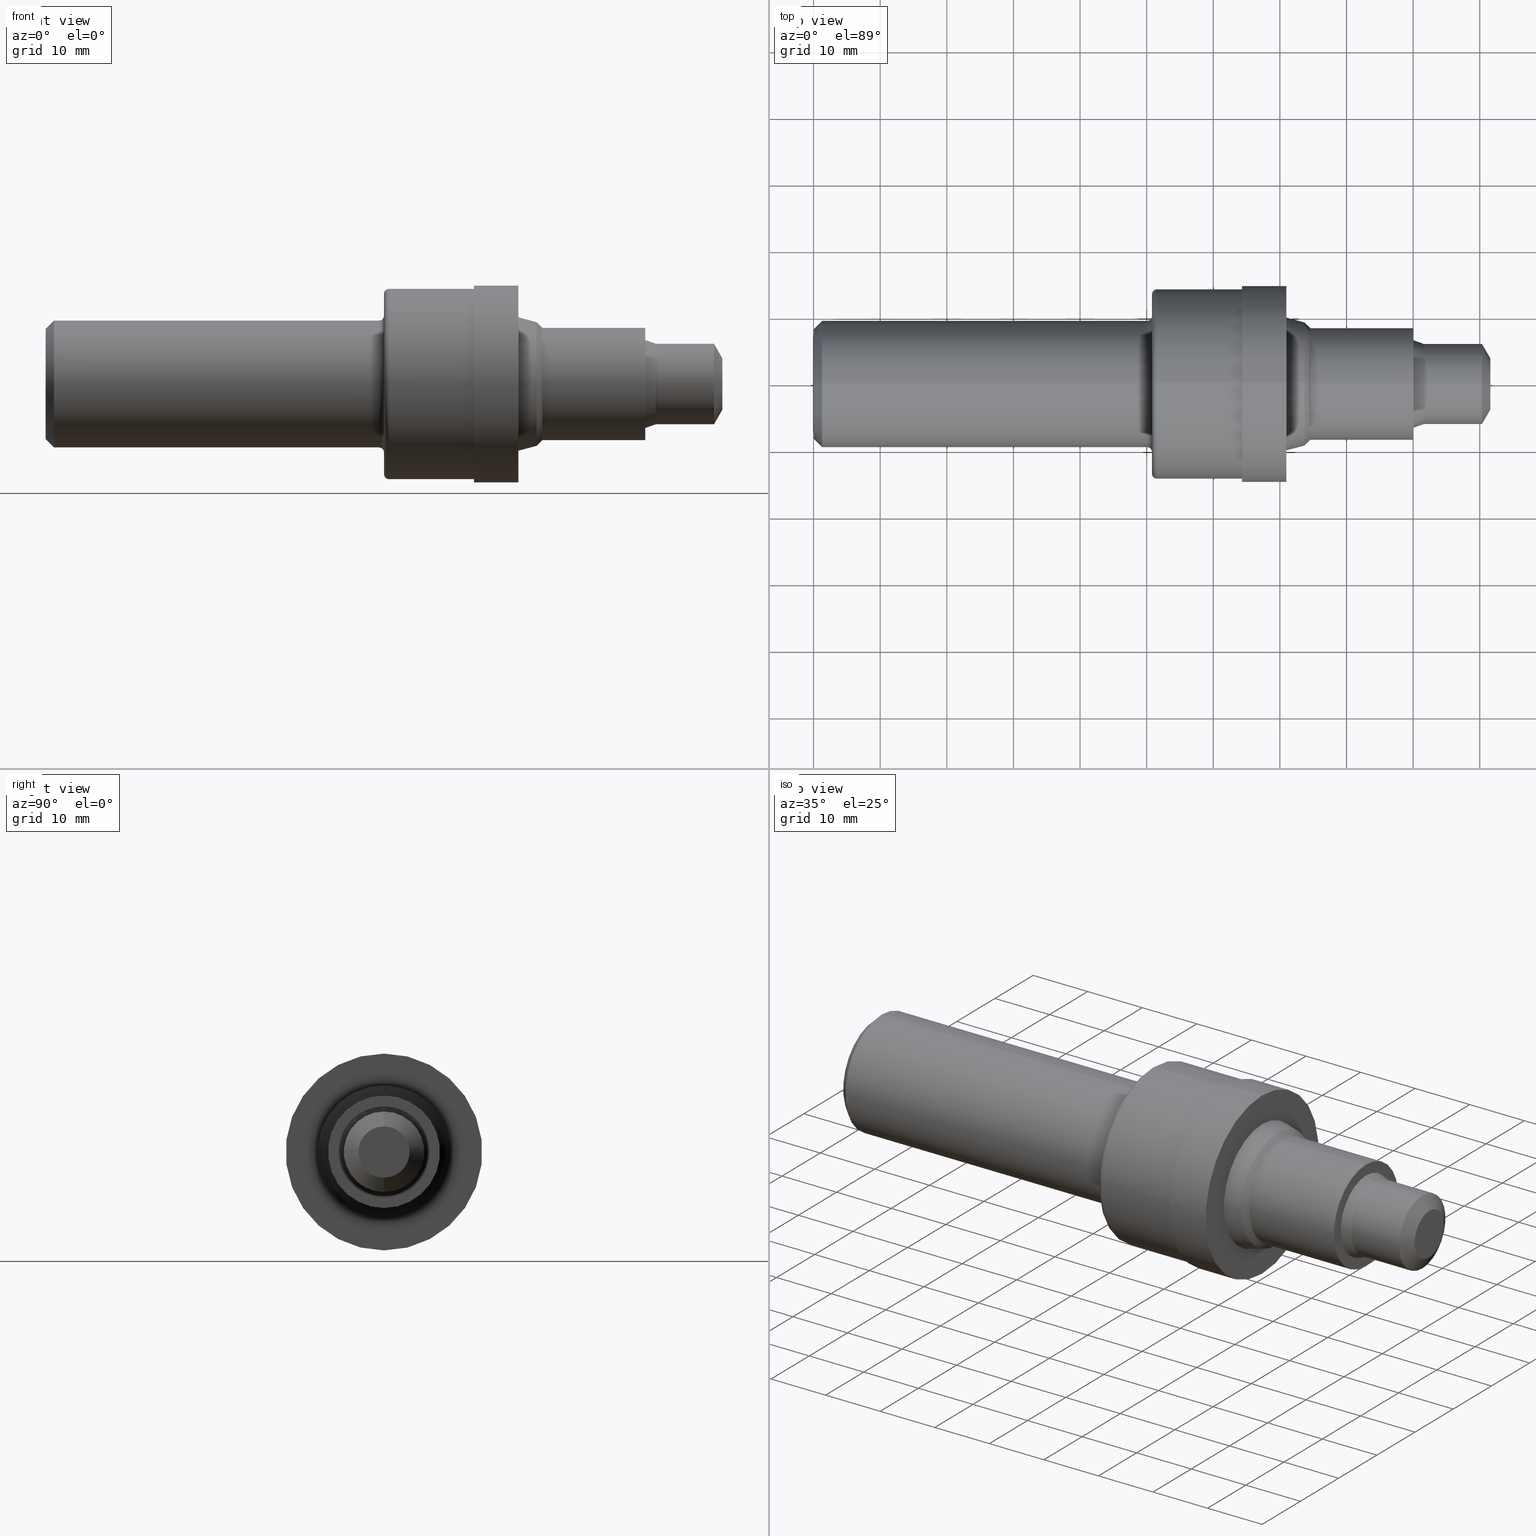
[diagram: canonical four-view strip — front | top / right | iso, engineering-drawing reading convention]
A machine part, canonical four-view strip (front | top / right | iso — engineering-drawing reading convention). The complete STEP part file that produces these views, byte-faithful:
ISO-10303-21;
HEADER;
FILE_DESCRIPTION (( 'STEP AP214' ),
    '1' );
FILE_NAME ('C08-2-ROUGH-X8.STEP',
    '2020-02-24T17:38:48',
    ( '' ),
    ( '' ),
    'SwSTEP 2.0',
    'SolidWorks 2018',
    '' );
FILE_SCHEMA (( 'AUTOMOTIVE_DESIGN' ));
ENDSEC;

DATA;
#1 = CARTESIAN_POINT ( 'NONE',  ( 2.532000000000000028, 0.0000000000000000000, 0.0000000000000000000 ) ) ;
#2 = EDGE_LOOP ( 'NONE', ( #606, #91, #370, #693 ) ) ;
#3 = FACE_OUTER_BOUND ( 'NONE', #350, .T. ) ;
#4 = EDGE_CURVE ( 'NONE', #41, #525, #375, .T. ) ;
#5 = DIRECTION ( 'NONE',  ( -1.000000000000000000, -0.0000000000000000000, -0.0000000000000000000 ) ) ;
#6 = DIRECTION ( 'NONE',  ( -1.000000000000000000, -0.0000000000000000000, -0.0000000000000000000 ) ) ;
#7 = CIRCLE ( 'NONE', #94, 0.2604661545245046117 ) ;
#8 = AXIS2_PLACEMENT_3D ( 'NONE', #637, #321, #272 ) ;
#9 = DIRECTION ( 'NONE',  ( 0.0000000000000000000, 0.0000000000000000000, 1.000000000000000000 ) ) ;
#10 = LINE ( 'NONE', #811, #71 ) ;
#11 = ORIENTED_EDGE ( 'NONE', *, *, #289, .T. ) ;
#12 = DIRECTION ( 'NONE',  ( -1.000000000000000000, -0.0000000000000000000, -0.0000000000000000000 ) ) ;
#13 = EDGE_LOOP ( 'NONE', ( #800, #532 ) ) ;
#14 = AXIS2_PLACEMENT_3D ( 'NONE', #789, #344, #283 ) ;
#15 = ORIENTED_EDGE ( 'NONE', *, *, #222, .T. ) ;
#16 = ORIENTED_EDGE ( 'NONE', *, *, #610, .F. ) ;
#17 = EDGE_CURVE ( 'NONE', #65, #208, #605, .T. ) ;
#18 = DIRECTION ( 'NONE',  ( 0.7071067811865483499, 0.0000000000000000000, -0.7071067811865465735 ) ) ;
#19 = CYLINDRICAL_SURFACE ( 'NONE', #780, 0.2379000000000000004 ) ;
#20 = AXIS2_PLACEMENT_3D ( 'NONE', #474, #368, #489 ) ;
#21 = ORIENTED_EDGE ( 'NONE', *, *, #470, .T. ) ;
#22 = CARTESIAN_POINT ( 'NONE',  ( 2.000000000000000000, 4.957982566348065676E-17, -0.4048500000000005428 ) ) ;
#23 = DIRECTION ( 'NONE',  ( -1.000000000000000000, -0.0000000000000000000, -0.0000000000000000000 ) ) ;
#24 = CONICAL_SURFACE ( 'NONE', #431, 0.2379000000000000004, 0.3490658503988663952 ) ;
#25 = DIRECTION ( 'NONE',  ( -1.000000000000000000, -0.0000000000000000000, -0.0000000000000000000 ) ) ;
#26 = CIRCLE ( 'NONE', #524, 0.4048500000000005428 ) ;
#27 = LINE ( 'NONE', #106, #678 ) ;
#28 = DIRECTION ( 'NONE',  ( 1.000000000000000000, 0.0000000000000000000, 0.0000000000000000000 ) ) ;
#29 = AXIS2_PLACEMENT_3D ( 'NONE', #630, #357, #563 ) ;
#30 = EDGE_LOOP ( 'NONE', ( #389, #768, #403, #763 ) ) ;
#31 = CARTESIAN_POINT ( 'NONE',  ( 0.0000000000000000000, 0.0000000000000000000, 0.0000000000000000000 ) ) ;
#32 = CARTESIAN_POINT ( 'NONE',  ( 0.0000000000000000000, 0.0000000000000000000, 0.5815000000000000169 ) ) ;
#33 = EDGE_CURVE ( 'NONE', #600, #408, #26, .T. ) ;
#34 = AXIS2_PLACEMENT_3D ( 'NONE', #382, #752, #377 ) ;
#35 = DIRECTION ( 'NONE',  ( -0.0000000000000000000, 0.0000000000000000000, 1.000000000000000000 ) ) ;
#36 = VERTEX_POINT ( 'NONE', #254 ) ;
#37 = CIRCLE ( 'NONE', #235, 0.2379000000000000004 ) ;
#38 = VERTEX_POINT ( 'NONE', #560 ) ;
#39 = DIRECTION ( 'NONE',  ( -1.000000000000000000, -0.0000000000000000000, -0.0000000000000000000 ) ) ;
#40 = DIRECTION ( 'NONE',  ( -1.000000000000000000, -0.0000000000000000000, -0.0000000000000000000 ) ) ;
#41 = VERTEX_POINT ( 'NONE', #684 ) ;
#42 = EDGE_LOOP ( 'NONE', ( #577, #257, #184, #243 ) ) ;
#43 = DIRECTION ( 'NONE',  ( 0.0000000000000000000, 0.0000000000000000000, -1.000000000000000000 ) ) ;
#44 = ADVANCED_FACE ( 'NONE', ( #146 ), #794, .T. ) ;
#45 = DIRECTION ( 'NONE',  ( 0.0000000000000000000, 0.0000000000000000000, 1.000000000000000000 ) ) ;
#46 = EDGE_CURVE ( 'NONE', #721, #394, #621, .T. ) ;
#47 = DIRECTION ( 'NONE',  ( -1.000000000000000000, -0.0000000000000000000, -0.0000000000000000000 ) ) ;
#48 = LINE ( 'NONE', #165, #531 ) ;
#49 = ADVANCED_FACE ( 'NONE', ( #513 ), #228, .F. ) ;
#50 = VERTEX_POINT ( 'NONE', #556 ) ;
#51 = AXIS2_PLACEMENT_3D ( 'NONE', #158, #23, #783 ) ;
#52 = DIRECTION ( 'NONE',  ( -1.000000000000000000, -0.0000000000000000000, -0.0000000000000000000 ) ) ;
#53 = CARTESIAN_POINT ( 'NONE',  ( 2.000000000000000000, 0.5324999999999999734, 0.0000000000000000000 ) ) ;
#54 = CARTESIAN_POINT ( 'NONE',  ( 2.935811487217439009, 4.059704139173475521E-17, -0.3314999999999999059 ) ) ;
#55 = ADVANCED_FACE ( 'NONE', ( #627 ), #465, .T. ) ;
#56 = EDGE_LOOP ( 'NONE', ( #285, #387, #443, #552 ) ) ;
#57 = SHAPE_DEFINITION_REPRESENTATION ( #790, #77 ) ;
#58 = CARTESIAN_POINT ( 'NONE',  ( 0.0000000000000000000, 0.0000000000000000000, 0.0000000000000000000 ) ) ;
#59 =( NAMED_UNIT ( * ) PLANE_ANGLE_UNIT ( ) SI_UNIT ( $, .RADIAN. ) );
#60 = AXIS2_PLACEMENT_3D ( 'NONE', #654, #594, #716 ) ;
#61 = DIMENSIONAL_EXPONENTS ( 1.000000000000000000, 0.0000000000000000000, 0.0000000000000000000, 0.0000000000000000000, 0.0000000000000000000, 0.0000000000000000000, 0.0000000000000000000 ) ;
#62 = CYLINDRICAL_SURFACE ( 'NONE', #702, 0.3314999999999999059 ) ;
#63 = SURFACE_STYLE_USAGE ( .BOTH. , #255 ) ;
#64 = EDGE_CURVE ( 'NONE', #615, #208, #331, .T. ) ;
#65 = VERTEX_POINT ( 'NONE', #115 ) ;
#66 = AXIS2_PLACEMENT_3D ( 'NONE', #112, #485, #45 ) ;
#67 = DIRECTION ( 'NONE',  ( 0.0000000000000000000, 0.0000000000000000000, 1.000000000000000000 ) ) ;
#68 = ORIENTED_EDGE ( 'NONE', *, *, #289, .F. ) ;
#69 = EDGE_LOOP ( 'NONE', ( #476, #700 ) ) ;
#70 = DIRECTION ( 'NONE',  ( -0.9396926207859083169, 4.188538737676997312E-17, -0.3420201433256691570 ) ) ;
#71 = VECTOR ( 'NONE', #602, 39.37007874015748143 ) ;
#72 = DIRECTION ( 'NONE',  ( 0.0000000000000000000, 0.0000000000000000000, 1.000000000000000000 ) ) ;
#73 = DIRECTION ( 'NONE',  ( 0.0000000000000000000, 0.0000000000000000000, 1.000000000000000000 ) ) ;
#74 = ORIENTED_EDGE ( 'NONE', *, *, #642, .T. ) ;
#75 = AXIS2_PLACEMENT_3D ( 'NONE', #453, #207, #144 ) ;
#76 = EDGE_CURVE ( 'NONE', #38, #320, #778, .T. ) ;
#77 = ADVANCED_BREP_SHAPE_REPRESENTATION ( 'C08-2-ROUGH-X8', ( #658, #334 ), #358 ) ;
#78 = ORIENTED_EDGE ( 'NONE', *, *, #554, .T. ) ;
#79 = CARTESIAN_POINT ( 'NONE',  ( 1.969999999999999973, 0.0000000000000000000, 0.4048500000000005428 ) ) ;
#80 = FACE_OUTER_BOUND ( 'NONE', #244, .T. ) ;
#81 = CARTESIAN_POINT ( 'NONE',  ( 3.950000000000000178, 0.0000000000000000000, 0.0000000000000000000 ) ) ;
#82 = LINE ( 'NONE', #706, #253 ) ;
#83 = EDGE_LOOP ( 'NONE', ( #11, #97 ) ) ;
#84 = ORIENTED_EDGE ( 'NONE', *, *, #194, .F. ) ;
#85 = ORIENTED_EDGE ( 'NONE', *, *, #583, .T. ) ;
#86 = VECTOR ( 'NONE', #174, 39.37007874015747433 ) ;
#87 = ORIENTED_EDGE ( 'NONE', *, *, #304, .T. ) ;
#88 = PRODUCT_DEFINITION_CONTEXT ( 'detailed design', #318, 'design' ) ;
#89 = PLANE ( 'NONE',  #381 ) ;
#90 = CIRCLE ( 'NONE', #231, 0.02999999999999995379 ) ;
#91 = ORIENTED_EDGE ( 'NONE', *, *, #739, .F. ) ;
#92 = EDGE_CURVE ( 'NONE', #356, #50, #545, .T. ) ;
#93 = DIRECTION ( 'NONE',  ( -1.000000000000000000, -0.0000000000000000000, -0.0000000000000000000 ) ) ;
#94 = AXIS2_PLACEMENT_3D ( 'NONE', #557, #802, #406 ) ;
#95 = CARTESIAN_POINT ( 'NONE',  ( 3.606000000000000316, 3.051612579709048924E-17, -0.2379000000000000004 ) ) ;
#96 = DIRECTION ( 'NONE',  ( -1.000000000000000000, -0.0000000000000000000, -0.0000000000000000000 ) ) ;
#97 = ORIENTED_EDGE ( 'NONE', *, *, #4, .T. ) ;
#98 = CYLINDRICAL_SURFACE ( 'NONE', #607, 0.5815000000000000169 ) ;
#99 = CARTESIAN_POINT ( 'NONE',  ( 2.532000000000000028, 0.0000000000000000000, 0.5625000000000000000 ) ) ;
#100 = AXIS2_PLACEMENT_3D ( 'NONE', #361, #591, #287 ) ;
#101 = EDGE_LOOP ( 'NONE', ( #473, #452 ) ) ;
#102 = FACE_OUTER_BOUND ( 'NONE', #566, .T. ) ;
#103 = EDGE_CURVE ( 'NONE', #506, #411, #793, .T. ) ;
#104 = EDGE_LOOP ( 'NONE', ( #521, #205 ) ) ;
#105 =( GEOMETRIC_REPRESENTATION_CONTEXT ( 3 ) GLOBAL_UNCERTAINTY_ASSIGNED_CONTEXT ( ( #749 ) ) GLOBAL_UNIT_ASSIGNED_CONTEXT ( ( #564, #193, #315 ) ) REPRESENTATION_CONTEXT ( 'NONE', 'WORKASPACE' ) );
#106 = CARTESIAN_POINT ( 'NONE',  ( 2.902000000000000135, 4.473775435125954983E-17, -0.3653114872174386685 ) ) ;
#107 = ORIENTED_EDGE ( 'NONE', *, *, #610, .T. ) ;
#108 = DIRECTION ( 'NONE',  ( 0.0000000000000000000, 0.0000000000000000000, 1.000000000000000000 ) ) ;
#109 = FACE_OUTER_BOUND ( 'NONE', #219, .T. ) ;
#110 = ORIENTED_EDGE ( 'NONE', *, *, #417, .F. ) ;
#111 = ORIENTED_EDGE ( 'NONE', *, *, #417, .T. ) ;
#112 = CARTESIAN_POINT ( 'NONE',  ( 2.029999999999999805, 0.0000000000000000000, 0.0000000000000000000 ) ) ;
#113 = PLANE ( 'NONE',  #131 ) ;
#114 = ADVANCED_FACE ( 'NONE', ( #3 ), #694, .F. ) ;
#115 = CARTESIAN_POINT ( 'NONE',  ( 0.0000000000000000000, 4.284426826817016124E-17, 0.3248500000000001386 ) ) ;
#116 = AXIS2_PLACEMENT_3D ( 'NONE', #516, #396, #9 ) ;
#117 = ORIENTED_EDGE ( 'NONE', *, *, #434, .F. ) ;
#118 = FILL_AREA_STYLE_COLOUR ( '', #182 ) ;
#119 = FACE_OUTER_BOUND ( 'NONE', #278, .T. ) ;
#120 = ADVANCED_FACE ( 'NONE', ( #143 ), #240, .F. ) ;
#121 = EDGE_CURVE ( 'NONE', #313, #36, #750, .T. ) ;
#122 = CARTESIAN_POINT ( 'NONE',  ( 2.000000000000000000, 0.0000000000000000000, 0.4048500000000005428 ) ) ;
#123 = ORIENTED_EDGE ( 'NONE', *, *, #121, .F. ) ;
#124 = AXIS2_PLACEMENT_3D ( 'NONE', #249, #439, #682 ) ;
#125 = EDGE_LOOP ( 'NONE', ( #217, #256, #461, #644 ) ) ;
#126 = FILL_AREA_STYLE_COLOUR ( '', #477 ) ;
#127 = ORIENTED_EDGE ( 'NONE', *, *, #137, .F. ) ;
#128 = ADVANCED_FACE ( 'NONE', ( #102 ), #388, .T. ) ;
#129 = DIRECTION ( 'NONE',  ( 0.0000000000000000000, 0.0000000000000000000, 1.000000000000000000 ) ) ;
#130 = DIRECTION ( 'NONE',  ( 0.0000000000000000000, 0.0000000000000000000, 1.000000000000000000 ) ) ;
#131 = AXIS2_PLACEMENT_3D ( 'NONE', #432, #247, #677 ) ;
#132 = CARTESIAN_POINT ( 'NONE',  ( 0.0000000000000000000, 4.059704139173475521E-17, -0.3314999999999999059 ) ) ;
#133 = CARTESIAN_POINT ( 'NONE',  ( 0.0000000000000000000, 0.0000000000000000000, 0.0000000000000000000 ) ) ;
#134 = VERTEX_POINT ( 'NONE', #672 ) ;
#135 = AXIS2_PLACEMENT_3D ( 'NONE', #685, #373, #620 ) ;
#136 = CARTESIAN_POINT ( 'NONE',  ( 2.532000000000000028, 0.0000000000000000000, 0.0000000000000000000 ) ) ;
#137 = EDGE_CURVE ( 'NONE', #423, #65, #579, .T. ) ;
#138 = VECTOR ( 'NONE', #179, 39.37007874015748143 ) ;
#139 = DIRECTION ( 'NONE',  ( 0.0000000000000000000, 0.0000000000000000000, 1.000000000000000000 ) ) ;
#140 = ORIENTED_EDGE ( 'NONE', *, *, #17, .T. ) ;
#141 = TOROIDAL_SURFACE ( 'NONE', #135, 0.5324999999999999734, 0.02999999999999998848 ) ;
#142 = AXIS2_PLACEMENT_3D ( 'NONE', #136, #390, #129 ) ;
#143 = FACE_OUTER_BOUND ( 'NONE', #463, .T. ) ;
#144 = DIRECTION ( 'NONE',  ( 0.0000000000000000000, 0.0000000000000000000, 1.000000000000000000 ) ) ;
#145 = DIRECTION ( 'NONE',  ( -1.000000000000000000, -0.0000000000000000000, -0.0000000000000000000 ) ) ;
#146 = FACE_OUTER_BOUND ( 'NONE', #715, .T. ) ;
#147 = DIRECTION ( 'NONE',  ( -1.000000000000000000, -0.0000000000000000000, -0.0000000000000000000 ) ) ;
#148 = DIRECTION ( 'NONE',  ( 0.0000000000000000000, 0.0000000000000000000, -1.000000000000000000 ) ) ;
#149 = ORIENTED_EDGE ( 'NONE', *, *, #233, .T. ) ;
#150 = AXIS2_PLACEMENT_3D ( 'NONE', #713, #529, #712 ) ;
#151 = DIRECTION ( 'NONE',  ( -1.000000000000000000, -0.0000000000000000000, -0.0000000000000000000 ) ) ;
#152 = EDGE_CURVE ( 'NONE', #335, #36, #567, .T. ) ;
#153 = VERTEX_POINT ( 'NONE', #801 ) ;
#154 = PRESENTATION_STYLE_ASSIGNMENT (( #63 ) ) ;
#155 = FACE_OUTER_BOUND ( 'NONE', #593, .T. ) ;
#156 = CARTESIAN_POINT ( 'NONE',  ( 2.935811487217439009, 0.0000000000000000000, 0.3314999999999999059 ) ) ;
#157 = ORIENTED_EDGE ( 'NONE', *, *, #276, .T. ) ;
#158 = CARTESIAN_POINT ( 'NONE',  ( 2.532000000000000028, 0.0000000000000000000, 0.0000000000000000000 ) ) ;
#159 = FACE_OUTER_BOUND ( 'NONE', #83, .T. ) ;
#160 = CARTESIAN_POINT ( 'NONE',  ( 0.0000000000000000000, 0.0000000000000000000, 0.0000000000000000000 ) ) ;
#161 = DIRECTION ( 'NONE',  ( 0.0000000000000000000, 0.0000000000000000000, 1.000000000000000000 ) ) ;
#162 = AXIS2_PLACEMENT_3D ( 'NONE', #230, #537, #167 ) ;
#163 = FACE_OUTER_BOUND ( 'NONE', #69, .T. ) ;
#164 = ORIENTED_EDGE ( 'NONE', *, *, #17, .F. ) ;
#165 = CARTESIAN_POINT ( 'NONE',  ( 0.0000000000000000000, 6.888638245203860712E-17, -0.5624999999999998890 ) ) ;
#166 = EDGE_CURVE ( 'NONE', #741, #587, #617, .T. ) ;
#167 = DIRECTION ( 'NONE',  ( 0.0000000000000000000, 0.0000000000000000000, 1.000000000000000000 ) ) ;
#168 = EDGE_LOOP ( 'NONE', ( #636, #492 ) ) ;
#169 = ORIENTED_EDGE ( 'NONE', *, *, #395, .T. ) ;
#170 = CARTESIAN_POINT ( 'NONE',  ( 0.0000000000000000000, 0.0000000000000000000, 0.3314999999999999059 ) ) ;
#171 = VECTOR ( 'NONE', #576, 39.37007874015748854 ) ;
#172 = CARTESIAN_POINT ( 'NONE',  ( 2.000000000000000000, 6.704941225331759370E-17, -0.5324999999999999734 ) ) ;
#173 = VERTEX_POINT ( 'NONE', #260 ) ;
#174 = DIRECTION ( 'NONE',  ( -0.9396926207859083169, 0.0000000000000000000, 0.3420201433256691570 ) ) ;
#175 = DIRECTION ( 'NONE',  ( -0.0000000000000000000, 0.0000000000000000000, 1.000000000000000000 ) ) ;
#176 = VECTOR ( 'NONE', #502, 39.37007874015748854 ) ;
#177 = ADVANCED_FACE ( 'NONE', ( #762 ), #731, .T. ) ;
#178 = CIRCLE ( 'NONE', #511, 0.3314999999999999059 ) ;
#179 = DIRECTION ( 'NONE',  ( -1.000000000000000000, -0.0000000000000000000, -0.0000000000000000000 ) ) ;
#180 = EDGE_CURVE ( 'NONE', #746, #721, #286, .T. ) ;
#181 = DIRECTION ( 'NONE',  ( -1.000000000000000000, -0.0000000000000000000, -0.0000000000000000000 ) ) ;
#182 = COLOUR_RGB ( '',0.7529411764705882248, 0.7529411764705882248, 0.7529411764705882248 ) ;
#183 = ADVANCED_FACE ( 'NONE', ( #271 ), #226, .T. ) ;
#184 = ORIENTED_EDGE ( 'NONE', *, *, #92, .F. ) ;
#185 = ORIENTED_EDGE ( 'NONE', *, *, #166, .T. ) ;
#186 = DIRECTION ( 'NONE',  ( -1.000000000000000000, -0.0000000000000000000, -0.0000000000000000000 ) ) ;
#187 = DIRECTION ( 'NONE',  ( -1.000000000000000000, 0.0000000000000000000, -0.0000000000000000000 ) ) ;
#188 = ORIENTED_EDGE ( 'NONE', *, *, #681, .T. ) ;
#189 = DIMENSIONAL_EXPONENTS ( 1.000000000000000000, 0.0000000000000000000, 0.0000000000000000000, 0.0000000000000000000, 0.0000000000000000000, 0.0000000000000000000, 0.0000000000000000000 ) ;
#190 = DIRECTION ( 'NONE',  ( 0.0000000000000000000, 0.0000000000000000000, 1.000000000000000000 ) ) ;
#191 = ORIENTED_EDGE ( 'NONE', *, *, #103, .F. ) ;
#192 = DIRECTION ( 'NONE',  ( 0.0000000000000000000, 0.0000000000000000000, 1.000000000000000000 ) ) ;
#193 =( NAMED_UNIT ( * ) PLANE_ANGLE_UNIT ( ) SI_UNIT ( $, .RADIAN. ) );
#194 = EDGE_CURVE ( 'NONE', #587, #335, #305, .T. ) ;
#195 = FACE_OUTER_BOUND ( 'NONE', #299, .T. ) ;
#196 = AXIS2_PLACEMENT_3D ( 'NONE', #508, #261, #635 ) ;
#197 = CARTESIAN_POINT ( 'NONE',  ( 3.544000000000000039, 0.0000000000000000000, 0.0000000000000000000 ) ) ;
#198 = DIRECTION ( 'NONE',  ( 1.000000000000000000, 0.0000000000000000000, 0.0000000000000000000 ) ) ;
#199 = ORIENTED_EDGE ( 'NONE', *, *, #76, .T. ) ;
#200 = DIRECTION ( 'NONE',  ( -1.000000000000000000, -0.0000000000000000000, -0.0000000000000000000 ) ) ;
#201 = CIRCLE ( 'NONE', #788, 0.03000000000000002318 ) ;
#202 = DIRECTION ( 'NONE',  ( 0.0000000000000000000, 0.0000000000000000000, 1.000000000000000000 ) ) ;
#203 = DIRECTION ( 'NONE',  ( -1.000000000000000000, -0.0000000000000000000, -0.0000000000000000000 ) ) ;
#204 = CIRCLE ( 'NONE', #20, 0.3653114872174386685 ) ;
#205 = ORIENTED_EDGE ( 'NONE', *, *, #121, .T. ) ;
#206 = AXIS2_PLACEMENT_3D ( 'NONE', #814, #186, #371 ) ;
#207 = DIRECTION ( 'NONE',  ( -1.000000000000000000, -0.0000000000000000000, -0.0000000000000000000 ) ) ;
#208 = VERTEX_POINT ( 'NONE', #398 ) ;
#209 = EDGE_CURVE ( 'NONE', #819, #721, #616, .T. ) ;
#210 = DIRECTION ( 'NONE',  ( -1.000000000000000000, -0.0000000000000000000, -0.0000000000000000000 ) ) ;
#211 = CARTESIAN_POINT ( 'NONE',  ( 0.0000000000000000000, 0.0000000000000000000, 0.0000000000000000000 ) ) ;
#212 = ORIENTED_EDGE ( 'NONE', *, *, #395, .F. ) ;
#213 = PRODUCT_RELATED_PRODUCT_CATEGORY ( 'part', '', ( #500 ) ) ;
#214 = CONICAL_SURFACE ( 'NONE', #692, 0.2379000000000000004, 0.3490658503988663952 ) ;
#215 = FACE_OUTER_BOUND ( 'NONE', #460, .T. ) ;
#216 = AXIS2_PLACEMENT_3D ( 'NONE', #79, #520, #148 ) ;
#217 = ORIENTED_EDGE ( 'NONE', *, *, #316, .T. ) ;
#218 = DIRECTION ( 'NONE',  ( -1.000000000000000000, -0.0000000000000000000, -0.0000000000000000000 ) ) ;
#219 = EDGE_LOOP ( 'NONE', ( #412, #234 ) ) ;
#220 = DIRECTION ( 'NONE',  ( -0.7071067811865482389, 0.0000000000000000000, 0.7071067811865467956 ) ) ;
#221 = CONICAL_SURFACE ( 'NONE', #785, 0.1512974596215561351, 1.047197551196600074 ) ;
#222 = EDGE_CURVE ( 'NONE', #721, #819, #324, .T. ) ;
#223 = ORIENTED_EDGE ( 'NONE', *, *, #583, .F. ) ;
#224 = SURFACE_SIDE_STYLE ('',( #696 ) ) ;
#225 = EDGE_LOOP ( 'NONE', ( #686, #15, #21, #16 ) ) ;
#226 = CONICAL_SURFACE ( 'NONE', #810, 0.3314999999999999059, 0.7853981633974472798 ) ;
#227 = CYLINDRICAL_SURFACE ( 'NONE', #407, 0.5815000000000000169 ) ;
#228 = TOROIDAL_SURFACE ( 'NONE', #206, 0.4048500000000005428, 0.02999999999999998848 ) ;
#229 =( LENGTH_UNIT ( ) NAMED_UNIT ( * ) SI_UNIT ( $, .METRE. ) );
#230 = CARTESIAN_POINT ( 'NONE',  ( 2.000000000000000000, 0.0000000000000000000, 0.0000000000000000000 ) ) ;
#231 = AXIS2_PLACEMENT_3D ( 'NONE', #736, #359, #657 ) ;
#232 = CIRCLE ( 'NONE', #753, 0.3748500000000005161 ) ;
#233 = EDGE_CURVE ( 'NONE', #746, #590, #436, .T. ) ;
#234 = ORIENTED_EDGE ( 'NONE', *, *, #233, .F. ) ;
#235 = AXIS2_PLACEMENT_3D ( 'NONE', #258, #633, #384 ) ;
#236 = CARTESIAN_POINT ( 'NONE',  ( 2.794000000000000483, 0.0000000000000000000, 0.0000000000000000000 ) ) ;
#237 = ORIENTED_EDGE ( 'NONE', *, *, #759, .F. ) ;
#238 = ORIENTED_EDGE ( 'NONE', *, *, #652, .F. ) ;
#239 = CARTESIAN_POINT ( 'NONE',  ( 4.000000000000000000, 0.0000000000000000000, 0.0000000000000000000 ) ) ;
#240 = PLANE ( 'NONE',  #676 ) ;
#241 = ADVANCED_FACE ( 'NONE', ( #487 ), #98, .T. ) ;
#242 = FACE_OUTER_BOUND ( 'NONE', #56, .T. ) ;
#243 = ORIENTED_EDGE ( 'NONE', *, *, #404, .F. ) ;
#244 = EDGE_LOOP ( 'NONE', ( #111, #385, #117, #339 ) ) ;
#245 = CONICAL_SURFACE ( 'NONE', #60, 0.3653114872174386685, 0.2617993877991496854 ) ;
#246 = DIRECTION ( 'NONE',  ( 0.0000000000000000000, 0.0000000000000000000, 1.000000000000000000 ) ) ;
#247 = DIRECTION ( 'NONE',  ( 1.000000000000000000, 0.0000000000000000000, 0.0000000000000000000 ) ) ;
#248 = AXIS2_PLACEMENT_3D ( 'NONE', #53, #742, #555 ) ;
#249 = CARTESIAN_POINT ( 'NONE',  ( 2.029999999999999805, 0.0000000000000000000, 0.0000000000000000000 ) ) ;
#250 = EDGE_CURVE ( 'NONE', #568, #456, #673, .T. ) ;
#251 = DIRECTION ( 'NONE',  ( -1.000000000000000000, -0.0000000000000000000, -0.0000000000000000000 ) ) ;
#252 = ADVANCED_FACE ( 'NONE', ( #809 ), #24, .T. ) ;
#253 = VECTOR ( 'NONE', #18, 39.37007874015748854 ) ;
#254 = CARTESIAN_POINT ( 'NONE',  ( 3.544000000000000039, 0.0000000000000000000, 0.2604661545245046117 ) ) ;
#255 = SURFACE_SIDE_STYLE ('',( #314 ) ) ;
#256 = ORIENTED_EDGE ( 'NONE', *, *, #180, .T. ) ;
#257 = ORIENTED_EDGE ( 'NONE', *, *, #570, .T. ) ;
#258 = CARTESIAN_POINT ( 'NONE',  ( 3.606000000000000316, 0.0000000000000000000, 0.0000000000000000000 ) ) ;
#259 = ORIENTED_EDGE ( 'NONE', *, *, #479, .T. ) ;
#260 = CARTESIAN_POINT ( 'NONE',  ( 2.902000000000000135, 0.0000000000000000000, 0.3653114872174386685 ) ) ;
#261 = DIRECTION ( 'NONE',  ( 0.0000000000000000000, -1.000000000000000000, 0.0000000000000000000 ) ) ;
#262 = FACE_OUTER_BOUND ( 'NONE', #101, .T. ) ;
#263 = CARTESIAN_POINT ( 'NONE',  ( 3.606000000000000316, 2.913434735171553361E-17, -0.2379000000000000004 ) ) ;
#264 = ORIENTED_EDGE ( 'NONE', *, *, #695, .T. ) ;
#265 = VERTEX_POINT ( 'NONE', #392 ) ;
#266 = EDGE_CURVE ( 'NONE', #648, #600, #201, .T. ) ;
#267 = CARTESIAN_POINT ( 'NONE',  ( 3.544000000000000039, 0.0000000000000000000, 0.0000000000000000000 ) ) ;
#268 = ORIENTED_EDGE ( 'NONE', *, *, #570, .F. ) ;
#269 = DIRECTION ( 'NONE',  ( 0.0000000000000000000, 0.0000000000000000000, 1.000000000000000000 ) ) ;
#270 = VECTOR ( 'NONE', #12, 39.37007874015748143 ) ;
#271 = FACE_OUTER_BOUND ( 'NONE', #225, .T. ) ;
#272 = DIRECTION ( 'NONE',  ( 0.0000000000000000000, 0.0000000000000000000, 1.000000000000000000 ) ) ;
#273 = CARTESIAN_POINT ( 'NONE',  ( 1.969999999999999973, 0.0000000000000000000, 0.0000000000000000000 ) ) ;
#274 = ORIENTED_EDGE ( 'NONE', *, *, #515, .F. ) ;
#275 = AXIS2_PLACEMENT_3D ( 'NONE', #293, #218, #464 ) ;
#276 = EDGE_CURVE ( 'NONE', #411, #313, #343, .T. ) ;
#277 = EDGE_LOOP ( 'NONE', ( #475, #149, #639, #468 ) ) ;
#278 = EDGE_LOOP ( 'NONE', ( #609, #585, #110, #295 ) ) ;
#279 = AXIS2_PLACEMENT_3D ( 'NONE', #323, #575, #73 ) ;
#280 = FACE_OUTER_BOUND ( 'NONE', #277, .T. ) ;
#281 = ORIENTED_EDGE ( 'NONE', *, *, #799, .F. ) ;
#282 = DIRECTION ( 'NONE',  ( 0.0000000000000000000, 0.0000000000000000000, 1.000000000000000000 ) ) ;
#283 = DIRECTION ( 'NONE',  ( 0.0000000000000000000, 0.0000000000000000000, 1.000000000000000000 ) ) ;
#284 = DIRECTION ( 'NONE',  ( 0.0000000000000000000, 0.0000000000000000000, 1.000000000000000000 ) ) ;
#285 = ORIENTED_EDGE ( 'NONE', *, *, #652, .T. ) ;
#286 = LINE ( 'NONE', #132, #597 ) ;
#287 = DIRECTION ( 'NONE',  ( 0.0000000000000000000, 0.0000000000000000000, 1.000000000000000000 ) ) ;
#288 = AXIS2_PLACEMENT_3D ( 'NONE', #211, #6, #512 ) ;
#289 = EDGE_CURVE ( 'NONE', #525, #41, #722, .T. ) ;
#290 = EDGE_LOOP ( 'NONE', ( #608, #140, #679, #534 ) ) ;
#291 =( NAMED_UNIT ( * ) PLANE_ANGLE_UNIT ( ) SI_UNIT ( $, .RADIAN. ) );
#292 = STYLED_ITEM ( 'NONE', ( #154 ), #77 ) ;
#293 = CARTESIAN_POINT ( 'NONE',  ( 0.0000000000000000000, 0.0000000000000000000, 0.0000000000000000000 ) ) ;
#294 = DIRECTION ( 'NONE',  ( -1.000000000000000000, 0.0000000000000000000, -0.0000000000000000000 ) ) ;
#295 = ORIENTED_EDGE ( 'NONE', *, *, #470, .F. ) ;
#296 = CARTESIAN_POINT ( 'NONE',  ( 0.0000000000000000000, 0.0000000000000000000, 0.0000000000000000000 ) ) ;
#297 = CARTESIAN_POINT ( 'NONE',  ( 1.969999999999999973, 4.590588526603859294E-17, -0.3748500000000005161 ) ) ;
#298 = CARTESIAN_POINT ( 'NONE',  ( 2.935811487217439009, 0.0000000000000000000, 0.0000000000000000000 ) ) ;
#299 = EDGE_LOOP ( 'NONE', ( #264, #446, #281, #84 ) ) ;
#300 = CARTESIAN_POINT ( 'NONE',  ( 4.000000000000000000, 0.1512974596215561351, 0.0000000000000000000 ) ) ;
#301 = AXIS2_PLACEMENT_3D ( 'NONE', #303, #675, #246 ) ;
#302 = CARTESIAN_POINT ( 'NONE',  ( 1.969999999999999973, 0.0000000000000000000, 0.3748500000000005161 ) ) ;
#303 = CARTESIAN_POINT ( 'NONE',  ( 2.794000000000000483, 0.0000000000000000000, 0.0000000000000000000 ) ) ;
#304 = EDGE_CURVE ( 'NONE', #38, #41, #454, .T. ) ;
#305 = LINE ( 'NONE', #455, #270 ) ;
#306 = VECTOR ( 'NONE', #437, 39.37007874015748143 ) ;
#307 = ADVANCED_FACE ( 'NONE', ( #80 ), #641, .T. ) ;
#308 = ORIENTED_EDGE ( 'NONE', *, *, #345, .T. ) ;
#309 = DIRECTION ( 'NONE',  ( 0.0000000000000000000, 0.0000000000000000000, 1.000000000000000000 ) ) ;
#310 = CARTESIAN_POINT ( 'NONE',  ( 2.532000000000000028, 0.0000000000000000000, 0.0000000000000000000 ) ) ;
#311 = CARTESIAN_POINT ( 'NONE',  ( 2.935811487217439009, 0.0000000000000000000, 0.3314999999999999059 ) ) ;
#312 = AXIS2_PLACEMENT_3D ( 'NONE', #784, #747, #349 ) ;
#313 = VERTEX_POINT ( 'NONE', #821 ) ;
#314 = SURFACE_STYLE_FILL_AREA ( #758 ) ;
#315 =( NAMED_UNIT ( * ) SI_UNIT ( $, .STERADIAN. ) SOLID_ANGLE_UNIT ( ) );
#316 = EDGE_CURVE ( 'NONE', #590, #746, #178, .T. ) ;
#317 = DIRECTION ( 'NONE',  ( -1.000000000000000000, -0.0000000000000000000, -0.0000000000000000000 ) ) ;
#318 = APPLICATION_CONTEXT ( 'automotive_design' ) ;
#319 = CIRCLE ( 'NONE', #14, 0.3653114872174386685 ) ;
#320 = VERTEX_POINT ( 'NONE', #766 ) ;
#321 = DIRECTION ( 'NONE',  ( -1.000000000000000000, -0.0000000000000000000, -0.0000000000000000000 ) ) ;
#322 = DIRECTION ( 'NONE',  ( 0.0000000000000000000, 0.0000000000000000000, 1.000000000000000000 ) ) ;
#323 = CARTESIAN_POINT ( 'NONE',  ( 0.0000000000000000000, 0.0000000000000000000, 0.0000000000000000000 ) ) ;
#324 = CIRCLE ( 'NONE', #116, 0.3314999999999999059 ) ;
#325 = DIRECTION ( 'NONE',  ( -1.000000000000000000, -0.0000000000000000000, -0.0000000000000000000 ) ) ;
#326 = DIRECTION ( 'NONE',  ( 0.0000000000000000000, 0.0000000000000000000, 1.000000000000000000 ) ) ;
#327 = CIRCLE ( 'NONE', #522, 0.1512974596215561351 ) ;
#328 = AXIS2_PLACEMENT_3D ( 'NONE', #551, #181, #613 ) ;
#329 = ORIENTED_EDGE ( 'NONE', *, *, #64, .T. ) ;
#330 = EDGE_CURVE ( 'NONE', #456, #568, #469, .T. ) ;
#331 = LINE ( 'NONE', #488, #806 ) ;
#332 = EDGE_CURVE ( 'NONE', #36, #313, #7, .T. ) ;
#333 = DIRECTION ( 'NONE',  ( 0.0000000000000000000, 0.0000000000000000000, 1.000000000000000000 ) ) ;
#334 = AXIS2_PLACEMENT_3D ( 'NONE', #631, #67, #198 ) ;
#335 = VERTEX_POINT ( 'NONE', #668 ) ;
#336 = DIRECTION ( 'NONE',  ( 0.0000000000000000000, 0.0000000000000000000, -1.000000000000000000 ) ) ;
#337 = FACE_OUTER_BOUND ( 'NONE', #441, .T. ) ;
#338 = DIRECTION ( 'NONE',  ( -1.000000000000000000, -0.0000000000000000000, -0.0000000000000000000 ) ) ;
#339 = ORIENTED_EDGE ( 'NONE', *, *, #629, .F. ) ;
#340 = CARTESIAN_POINT ( 'NONE',  ( 0.05000000000000000278, 0.0000000000000000000, 0.0000000000000000000 ) ) ;
#341 = DIRECTION ( 'NONE',  ( 0.0000000000000000000, 0.0000000000000000000, -1.000000000000000000 ) ) ;
#342 = AXIS2_PLACEMENT_3D ( 'NONE', #236, #598, #530 ) ;
#343 = LINE ( 'NONE', #263, #748 ) ;
#344 = DIRECTION ( 'NONE',  ( -1.000000000000000000, -0.0000000000000000000, -0.0000000000000000000 ) ) ;
#345 = EDGE_CURVE ( 'NONE', #320, #38, #653, .T. ) ;
#346 = FACE_OUTER_BOUND ( 'NONE', #362, .T. ) ;
#347 = CARTESIAN_POINT ( 'NONE',  ( 4.000000000000000000, 0.0000000000000000000, 0.0000000000000000000 ) ) ;
#348 = ORIENTED_EDGE ( 'NONE', *, *, #445, .F. ) ;
#349 = DIRECTION ( 'NONE',  ( 0.0000000000000000000, 0.0000000000000000000, 1.000000000000000000 ) ) ;
#350 = EDGE_LOOP ( 'NONE', ( #223, #643, #666, #237 ) ) ;
#351 = LENGTH_MEASURE_WITH_UNIT ( LENGTH_MEASURE( 0.02539999999999999897 ), #687 );
#352 = CARTESIAN_POINT ( 'NONE',  ( 2.794000000000000483, 0.0000000000000000000, 0.3942499999999999893 ) ) ;
#353 = CYLINDRICAL_SURFACE ( 'NONE', #288, 0.2379000000000000004 ) ;
#354 = CARTESIAN_POINT ( 'NONE',  ( 3.544000000000000039, 0.0000000000000000000, 0.3314999999999999059 ) ) ;
#355 = EDGE_CURVE ( 'NONE', #50, #356, #510, .T. ) ;
#356 = VERTEX_POINT ( 'NONE', #786 ) ;
#357 = DIRECTION ( 'NONE',  ( -1.000000000000000000, -0.0000000000000000000, -0.0000000000000000000 ) ) ;
#358 =( GEOMETRIC_REPRESENTATION_CONTEXT ( 3 ) GLOBAL_UNCERTAINTY_ASSIGNED_CONTEXT ( ( #372 ) ) GLOBAL_UNIT_ASSIGNED_CONTEXT ( ( #440, #59, #497 ) ) REPRESENTATION_CONTEXT ( 'NONE', 'WORKASPACE' ) );
#359 = DIRECTION ( 'NONE',  ( -0.0000000000000000000, 1.000000000000000000, 1.224646799147353207E-16 ) ) ;
#360 = DIRECTION ( 'NONE',  ( -1.000000000000000000, -0.0000000000000000000, -0.0000000000000000000 ) ) ;
#361 = CARTESIAN_POINT ( 'NONE',  ( 4.000000000000000000, 0.0000000000000000000, 0.0000000000000000000 ) ) ;
#362 = EDGE_LOOP ( 'NONE', ( #259, #710 ) ) ;
#363 = FACE_OUTER_BOUND ( 'NONE', #30, .T. ) ;
#364 = DIRECTION ( 'NONE',  ( -1.000000000000000000, -0.0000000000000000000, -0.0000000000000000000 ) ) ;
#365 = CARTESIAN_POINT ( 'NONE',  ( 0.0000000000000000000, 0.0000000000000000000, 0.5624999999999998890 ) ) ;
#366 = ADVANCED_FACE ( 'NONE', ( #119 ), #772, .T. ) ;
#367 = FACE_OUTER_BOUND ( 'NONE', #290, .T. ) ;
#368 = DIRECTION ( 'NONE',  ( -1.000000000000000000, -0.0000000000000000000, -0.0000000000000000000 ) ) ;
#369 = ORIENTED_EDGE ( 'NONE', *, *, #629, .T. ) ;
#370 = ORIENTED_EDGE ( 'NONE', *, *, #759, .T. ) ;
#371 = DIRECTION ( 'NONE',  ( 0.0000000000000000000, 0.0000000000000000000, 1.000000000000000000 ) ) ;
#372 = UNCERTAINTY_MEASURE_WITH_UNIT (LENGTH_MEASURE( 1.000000000000000082E-05 ), #440, 'distance_accuracy_value', 'NONE');
#373 = DIRECTION ( 'NONE',  ( -1.000000000000000000, -0.0000000000000000000, -0.0000000000000000000 ) ) ;
#374 = ADVANCED_FACE ( 'NONE', ( #363 ), #141, .T. ) ;
#375 = CIRCLE ( 'NONE', #732, 0.5815000000000000169 ) ;
#376 = CARTESIAN_POINT ( 'NONE',  ( 2.000000000000000000, 0.0000000000000000000, 0.0000000000000000000 ) ) ;
#377 = DIRECTION ( 'NONE',  ( 0.0000000000000000000, 0.0000000000000000000, 1.000000000000000000 ) ) ;
#378 = EDGE_CURVE ( 'NONE', #134, #208, #578, .T. ) ;
#379 = CIRCLE ( 'NONE', #34, 0.3748500000000000165 ) ;
#380 = DIMENSIONAL_EXPONENTS ( 1.000000000000000000, 0.0000000000000000000, 0.0000000000000000000, 0.0000000000000000000, 0.0000000000000000000, 0.0000000000000000000, 0.0000000000000000000 ) ;
#381 = AXIS2_PLACEMENT_3D ( 'NONE', #462, #294, #35 ) ;
#382 = CARTESIAN_POINT ( 'NONE',  ( 0.05000000000000000278, 0.0000000000000000000, 0.0000000000000000000 ) ) ;
#383 = CIRCLE ( 'NONE', #196, 0.02999999999999995379 ) ;
#384 = DIRECTION ( 'NONE',  ( 0.0000000000000000000, 0.0000000000000000000, 1.000000000000000000 ) ) ;
#385 = ORIENTED_EDGE ( 'NONE', *, *, #595, .T. ) ;
#386 = ADVANCED_FACE ( 'NONE', ( #792, #159 ), #113, .F. ) ;
#387 = ORIENTED_EDGE ( 'NONE', *, *, #787, .T. ) ;
#388 = CONICAL_SURFACE ( 'NONE', #717, 0.3748500000000000165, 0.7853981633974470578 ) ;
#389 = ORIENTED_EDGE ( 'NONE', *, *, #92, .T. ) ;
#390 = DIRECTION ( 'NONE',  ( -1.000000000000000000, -0.0000000000000000000, -0.0000000000000000000 ) ) ;
#391 = AXIS2_PLACEMENT_3D ( 'NONE', #745, #680, #818 ) ;
#392 = CARTESIAN_POINT ( 'NONE',  ( 2.000000000000000000, 0.0000000000000000000, 0.5324999999999999734 ) ) ;
#393 = CIRCLE ( 'NONE', #401, 0.3748500000000005161 ) ;
#394 = VERTEX_POINT ( 'NONE', #625 ) ;
#395 = EDGE_CURVE ( 'NONE', #411, #335, #438, .T. ) ;
#396 = DIRECTION ( 'NONE',  ( -1.000000000000000000, -0.0000000000000000000, -0.0000000000000000000 ) ) ;
#397 = CARTESIAN_POINT ( 'NONE',  ( 3.544000000000000039, 4.059704139173475521E-17, -0.3314999999999999059 ) ) ;
#398 = CARTESIAN_POINT ( 'NONE',  ( 0.05000000000000000278, 4.590588526603853748E-17, 0.3748500000000000165 ) ) ;
#399 = CARTESIAN_POINT ( 'NONE',  ( 4.000000000000000000, 0.0000000000000000000, 0.1512974596215561351 ) ) ;
#400 = FACE_OUTER_BOUND ( 'NONE', #125, .T. ) ;
#401 = AXIS2_PLACEMENT_3D ( 'NONE', #466, #664, #420 ) ;
#402 = PLANE ( 'NONE',  #697 ) ;
#403 = ORIENTED_EDGE ( 'NONE', *, *, #479, .F. ) ;
#404 = EDGE_CURVE ( 'NONE', #568, #356, #803, .T. ) ;
#405 = EDGE_LOOP ( 'NONE', ( #419, #596, #728, #659 ) ) ;
#406 = DIRECTION ( 'NONE',  ( 0.0000000000000000000, 0.0000000000000000000, 1.000000000000000000 ) ) ;
#407 = AXIS2_PLACEMENT_3D ( 'NONE', #133, #200, #130 ) ;
#408 = VERTEX_POINT ( 'NONE', #122 ) ;
#409 = CIRCLE ( 'NONE', #312, 0.5324999999999999734 ) ;
#410 = CARTESIAN_POINT ( 'NONE',  ( 2.532000000000000028, 6.888638245203861944E-17, -0.5625000000000001110 ) ) ;
#411 = VERTEX_POINT ( 'NONE', #95 ) ;
#412 = ORIENTED_EDGE ( 'NONE', *, *, #316, .F. ) ;
#413 = DIRECTION ( 'NONE',  ( -1.000000000000000000, -0.0000000000000000000, -0.0000000000000000000 ) ) ;
#414 = AXIS2_PLACEMENT_3D ( 'NONE', #640, #203, #139 ) ;
#415 = EDGE_LOOP ( 'NONE', ( #528, #157, #796, #646 ) ) ;
#416 = DIRECTION ( 'NONE',  ( 0.0000000000000000000, 0.0000000000000000000, 1.000000000000000000 ) ) ;
#417 = EDGE_CURVE ( 'NONE', #173, #394, #319, .T. ) ;
#418 = VECTOR ( 'NONE', #93, 39.37007874015748143 ) ;
#419 = ORIENTED_EDGE ( 'NONE', *, *, #739, .T. ) ;
#420 = DIRECTION ( 'NONE',  ( 0.0000000000000000000, 0.0000000000000000000, 1.000000000000000000 ) ) ;
#421 = ORIENTED_EDGE ( 'NONE', *, *, #720, .T. ) ;
#422 = CONICAL_SURFACE ( 'NONE', #100, 0.1512974596215561351, 1.047197551196600074 ) ;
#423 = VERTEX_POINT ( 'NONE', #533 ) ;
#424 = DIRECTION ( 'NONE',  ( 0.0000000000000000000, 0.0000000000000000000, 1.000000000000000000 ) ) ;
#425 = CARTESIAN_POINT ( 'NONE',  ( 3.606000000000000316, 0.0000000000000000000, 0.0000000000000000000 ) ) ;
#426 = DIRECTION ( 'NONE',  ( 1.000000000000000000, 0.0000000000000000000, 0.0000000000000000000 ) ) ;
#427 = CARTESIAN_POINT ( 'NONE',  ( 0.0000000000000000000, 0.0000000000000000000, 0.0000000000000000000 ) ) ;
#428 = FACE_BOUND ( 'NONE', #777, .T. ) ;
#429 = ORIENTED_EDGE ( 'NONE', *, *, #445, .T. ) ;
#430 = DIRECTION ( 'NONE',  ( -1.000000000000000000, 0.0000000000000000000, -0.0000000000000000000 ) ) ;
#431 = AXIS2_PLACEMENT_3D ( 'NONE', #450, #5, #72 ) ;
#432 = CARTESIAN_POINT ( 'NONE',  ( 2.532000000000000028, 0.5625000000000000000, 0.0000000000000000000 ) ) ;
#433 = ADVANCED_FACE ( 'NONE', ( #647 ), #245, .T. ) ;
#434 = EDGE_CURVE ( 'NONE', #448, #771, #480, .T. ) ;
#435 = EDGE_LOOP ( 'NONE', ( #274, #632, #761, #816 ) ) ;
#436 = CIRCLE ( 'NONE', #822, 0.3314999999999999059 ) ;
#437 = DIRECTION ( 'NONE',  ( -0.7071067811865482389, 8.659560562354924230E-17, -0.7071067811865467956 ) ) ;
#438 = CIRCLE ( 'NONE', #798, 0.2379000000000000004 ) ;
#439 = DIRECTION ( 'NONE',  ( -1.000000000000000000, -0.0000000000000000000, -0.0000000000000000000 ) ) ;
#440 =( CONVERSION_BASED_UNIT ( 'INCH', #351 ) LENGTH_UNIT ( ) NAMED_UNIT ( #189 ) );
#441 = EDGE_LOOP ( 'NONE', ( #542, #199, #78, #604 ) ) ;
#442 = AXIS2_PLACEMENT_3D ( 'NONE', #340, #28, #341 ) ;
#443 = ORIENTED_EDGE ( 'NONE', *, *, #695, .F. ) ;
#444 = ADVANCED_FACE ( 'NONE', ( #155 ), #422, .T. ) ;
#445 = EDGE_CURVE ( 'NONE', #771, #448, #483, .T. ) ;
#446 = ORIENTED_EDGE ( 'NONE', *, *, #103, .T. ) ;
#447 = VECTOR ( 'NONE', #220, 39.37007874015748143 ) ;
#448 = VERTEX_POINT ( 'NONE', #352 ) ;
#449 = LINE ( 'NONE', #478, #744 ) ;
#450 = CARTESIAN_POINT ( 'NONE',  ( 3.606000000000000316, 0.0000000000000000000, 0.0000000000000000000 ) ) ;
#451 = DIRECTION ( 'NONE',  ( 0.0000000000000000000, 0.0000000000000000000, 1.000000000000000000 ) ) ;
#452 = ORIENTED_EDGE ( 'NONE', *, *, #76, .F. ) ;
#453 = CARTESIAN_POINT ( 'NONE',  ( 2.935811487217439009, 0.0000000000000000000, 0.0000000000000000000 ) ) ;
#454 = LINE ( 'NONE', #703, #559 ) ;
#455 = CARTESIAN_POINT ( 'NONE',  ( 0.0000000000000000000, 0.0000000000000000000, 0.2379000000000000004 ) ) ;
#456 = VERTEX_POINT ( 'NONE', #410 ) ;
#457 = EDGE_CURVE ( 'NONE', #648, #134, #449, .T. ) ;
#458 = DIRECTION ( 'NONE',  ( -1.000000000000000000, -0.0000000000000000000, -0.0000000000000000000 ) ) ;
#459 = AXIS2_PLACEMENT_3D ( 'NONE', #701, #770, #326 ) ;
#460 = EDGE_LOOP ( 'NONE', ( #191, #421, #626, #212 ) ) ;
#461 = ORIENTED_EDGE ( 'NONE', *, *, #209, .F. ) ;
#462 = CARTESIAN_POINT ( 'NONE',  ( 3.544000000000000039, 0.3314999999999999059, 0.0000000000000000000 ) ) ;
#463 = EDGE_LOOP ( 'NONE', ( #238, #804 ) ) ;
#464 = DIRECTION ( 'NONE',  ( 0.0000000000000000000, 0.0000000000000000000, 1.000000000000000000 ) ) ;
#465 = CYLINDRICAL_SURFACE ( 'NONE', #391, 0.3748500000000002386 ) ;
#466 = CARTESIAN_POINT ( 'NONE',  ( 1.969999999999999973, 0.0000000000000000000, 0.0000000000000000000 ) ) ;
#467 = MECHANICAL_DESIGN_GEOMETRIC_PRESENTATION_REPRESENTATION (  '', ( #565 ), #603 ) ;
#468 = ORIENTED_EDGE ( 'NONE', *, *, #222, .F. ) ;
#469 = CIRCLE ( 'NONE', #51, 0.5625000000000000000 ) ;
#470 = EDGE_CURVE ( 'NONE', #819, #173, #619, .T. ) ;
#471 = DIRECTION ( 'NONE',  ( 0.0000000000000000000, 0.0000000000000000000, 1.000000000000000000 ) ) ;
#472 = CARTESIAN_POINT ( 'NONE',  ( 2.794000000000000483, 0.5815000000000000169, 0.0000000000000000000 ) ) ;
#473 = ORIENTED_EDGE ( 'NONE', *, *, #345, .F. ) ;
#474 = CARTESIAN_POINT ( 'NONE',  ( 2.902000000000000135, 0.0000000000000000000, 0.0000000000000000000 ) ) ;
#475 = ORIENTED_EDGE ( 'NONE', *, *, #180, .F. ) ;
#476 = ORIENTED_EDGE ( 'NONE', *, *, #137, .T. ) ;
#477 = COLOUR_RGB ( '',0.7529411764705882248, 0.7529411764705882248, 0.7529411764705882248 ) ;
#478 = CARTESIAN_POINT ( 'NONE',  ( 0.0000000000000000000, 4.590588526603856213E-17, -0.3748500000000002386 ) ) ;
#479 = EDGE_CURVE ( 'NONE', #265, #518, #767, .T. ) ;
#480 = CIRCLE ( 'NONE', #342, 0.3942499999999999893 ) ;
#481 = CARTESIAN_POINT ( 'NONE',  ( 0.0000000000000000000, 0.0000000000000000000, 0.0000000000000000000 ) ) ;
#482 = ORIENTED_EDGE ( 'NONE', *, *, #554, .F. ) ;
#483 = CIRCLE ( 'NONE', #150, 0.3942499999999999893 ) ;
#484 = ADVANCED_FACE ( 'NONE', ( #109, #589 ), #89, .F. ) ;
#485 = DIRECTION ( 'NONE',  ( -1.000000000000000000, -0.0000000000000000000, -0.0000000000000000000 ) ) ;
#486 = CARTESIAN_POINT ( 'NONE',  ( 2.935811487217439009, 0.0000000000000000000, 0.0000000000000000000 ) ) ;
#487 = FACE_OUTER_BOUND ( 'NONE', #733, .T. ) ;
#488 = CARTESIAN_POINT ( 'NONE',  ( 0.0000000000000000000, 0.0000000000000000000, 0.3748500000000002386 ) ) ;
#489 = DIRECTION ( 'NONE',  ( 0.0000000000000000000, 0.0000000000000000000, 1.000000000000000000 ) ) ;
#490 = ADVANCED_FACE ( 'NONE', ( #280 ), #573, .T. ) ;
#491 = FACE_BOUND ( 'NONE', #168, .T. ) ;
#492 = ORIENTED_EDGE ( 'NONE', *, *, #33, .F. ) ;
#493 = AXIS2_PLACEMENT_3D ( 'NONE', #160, #572, #795 ) ;
#494 = DIRECTION ( 'NONE',  ( 0.0000000000000000000, 0.0000000000000000000, 1.000000000000000000 ) ) ;
#495 = EDGE_LOOP ( 'NONE', ( #586, #169, #499, #123 ) ) ;
#496 = DIRECTION ( 'NONE',  ( -1.000000000000000000, -0.0000000000000000000, -0.0000000000000000000 ) ) ;
#497 =( NAMED_UNIT ( * ) SI_UNIT ( $, .STERADIAN. ) SOLID_ANGLE_UNIT ( ) );
#498 = EDGE_CURVE ( 'NONE', #65, #423, #737, .T. ) ;
#499 = ORIENTED_EDGE ( 'NONE', *, *, #152, .T. ) ;
#500 = PRODUCT ( 'C08-2-ROUGH-X8', 'C08-2-ROUGH-X8', '', ( #691 ) ) ;
#501 = ORIENTED_EDGE ( 'NONE', *, *, #457, .F. ) ;
#502 = DIRECTION ( 'NONE',  ( 0.7071067811865483499, 8.659560562354922997E-17, 0.7071067811865465735 ) ) ;
#503 =( LENGTH_UNIT ( ) NAMED_UNIT ( * ) SI_UNIT ( $, .METRE. ) );
#504 = CYLINDRICAL_SURFACE ( 'NONE', #279, 0.3748500000000002386 ) ;
#505 = DIRECTION ( 'NONE',  ( 0.0000000000000000000, 0.0000000000000000000, 1.000000000000000000 ) ) ;
#506 = VERTEX_POINT ( 'NONE', #724 ) ;
#507 = CARTESIAN_POINT ( 'NONE',  ( 0.05000000000000000278, 4.590588526603853748E-17, 0.3748500000000000165 ) ) ;
#508 = CARTESIAN_POINT ( 'NONE',  ( 2.029999999999999805, 0.0000000000000000000, 0.5324999999999999734 ) ) ;
#509 = DIRECTION ( 'NONE',  ( -0.0000000000000000000, 1.000000000000000000, 1.224646799147353207E-16 ) ) ;
#510 = CIRCLE ( 'NONE', #124, 0.5624999999999998890 ) ;
#511 = AXIS2_PLACEMENT_3D ( 'NONE', #197, #541, #282 ) ;
#512 = DIRECTION ( 'NONE',  ( 0.0000000000000000000, 0.0000000000000000000, 1.000000000000000000 ) ) ;
#513 = FACE_OUTER_BOUND ( 'NONE', #2, .T. ) ;
#514 = CIRCLE ( 'NONE', #667, 0.1512974596215561351 ) ;
#515 = EDGE_CURVE ( 'NONE', #50, #518, #90, .T. ) ;
#516 = CARTESIAN_POINT ( 'NONE',  ( 2.935811487217439009, 0.0000000000000000000, 0.0000000000000000000 ) ) ;
#517 = DIRECTION ( 'NONE',  ( 0.0000000000000000000, 0.0000000000000000000, 1.000000000000000000 ) ) ;
#518 = VERTEX_POINT ( 'NONE', #172 ) ;
#519 = UNCERTAINTY_MEASURE_WITH_UNIT (LENGTH_MEASURE( 1.000000000000000082E-05 ), #662, 'distance_accuracy_value', 'NONE');
#520 = DIRECTION ( 'NONE',  ( 0.0000000000000000000, -1.000000000000000000, 0.0000000000000000000 ) ) ;
#521 = ORIENTED_EDGE ( 'NONE', *, *, #332, .T. ) ;
#522 = AXIS2_PLACEMENT_3D ( 'NONE', #347, #718, #284 ) ;
#523 = CIRCLE ( 'NONE', #216, 0.03000000000000002318 ) ;
#524 = AXIS2_PLACEMENT_3D ( 'NONE', #376, #751, #309 ) ;
#525 = VERTEX_POINT ( 'NONE', #660 ) ;
#526 = DIRECTION ( 'NONE',  ( 0.0000000000000000000, 0.0000000000000000000, 1.000000000000000000 ) ) ;
#527 = AXIS2_PLACEMENT_3D ( 'NONE', #427, #40, #108 ) ;
#528 = ORIENTED_EDGE ( 'NONE', *, *, #799, .T. ) ;
#529 = DIRECTION ( 'NONE',  ( -1.000000000000000000, -0.0000000000000000000, -0.0000000000000000000 ) ) ;
#530 = DIRECTION ( 'NONE',  ( 0.0000000000000000000, 0.0000000000000000000, 1.000000000000000000 ) ) ;
#531 = VECTOR ( 'NONE', #730, 39.37007874015748143 ) ;
#532 = ORIENTED_EDGE ( 'NONE', *, *, #330, .F. ) ;
#533 = CARTESIAN_POINT ( 'NONE',  ( 0.0000000000000000000, 0.0000000000000000000, -0.3248500000000001386 ) ) ;
#534 = ORIENTED_EDGE ( 'NONE', *, *, #681, .F. ) ;
#535 = CARTESIAN_POINT ( 'NONE',  ( 4.000000000000000000, 0.0000000000000000000, 0.0000000000000000000 ) ) ;
#536 = AXIS2_PLACEMENT_3D ( 'NONE', #486, #47, #494 ) ;
#537 = DIRECTION ( 'NONE',  ( -1.000000000000000000, -0.0000000000000000000, -0.0000000000000000000 ) ) ;
#538 = EDGE_CURVE ( 'NONE', #518, #265, #409, .T. ) ;
#539 = CYLINDRICAL_SURFACE ( 'NONE', #493, 0.5624999999999998890 ) ;
#540 = ORIENTED_EDGE ( 'NONE', *, *, #355, .F. ) ;
#541 = DIRECTION ( 'NONE',  ( -1.000000000000000000, -0.0000000000000000000, -0.0000000000000000000 ) ) ;
#542 = ORIENTED_EDGE ( 'NONE', *, *, #304, .F. ) ;
#543 = CARTESIAN_POINT ( 'NONE',  ( 3.606000000000000316, 0.0000000000000000000, 0.2379000000000000004 ) ) ;
#544 = VECTOR ( 'NONE', #670, 39.37007874015748854 ) ;
#545 = CIRCLE ( 'NONE', #66, 0.5624999999999998890 ) ;
#546 = ORIENTED_EDGE ( 'NONE', *, *, #330, .T. ) ;
#547 = CARTESIAN_POINT ( 'NONE',  ( 0.05000000000000000278, 0.0000000000000000000, 0.0000000000000000000 ) ) ;
#548 = ADVANCED_FACE ( 'NONE', ( #242 ), #221, .T. ) ;
#549 = LINE ( 'NONE', #32, #714 ) ;
#550 = AXIS2_PLACEMENT_3D ( 'NONE', #1, #317, #322 ) ;
#551 = CARTESIAN_POINT ( 'NONE',  ( 0.05000000000000000278, 0.0000000000000000000, 0.0000000000000000000 ) ) ;
#552 = ORIENTED_EDGE ( 'NONE', *, *, #166, .F. ) ;
#553 = ORIENTED_EDGE ( 'NONE', *, *, #595, .F. ) ;
#554 = EDGE_CURVE ( 'NONE', #320, #525, #549, .T. ) ;
#555 = DIRECTION ( 'NONE',  ( 0.0000000000000000000, 0.0000000000000000000, -1.000000000000000000 ) ) ;
#556 = CARTESIAN_POINT ( 'NONE',  ( 2.029999999999999805, 6.888638245203860712E-17, -0.5624999999999998890 ) ) ;
#557 = CARTESIAN_POINT ( 'NONE',  ( 3.544000000000000039, 0.0000000000000000000, 0.0000000000000000000 ) ) ;
#558 = ADVANCED_FACE ( 'NONE', ( #262, #428 ), #726, .F. ) ;
#559 = VECTOR ( 'NONE', #210, 39.37007874015748143 ) ;
#560 = CARTESIAN_POINT ( 'NONE',  ( 2.794000000000000483, 7.121321137041857306E-17, -0.5815000000000000169 ) ) ;
#561 = APPLICATION_PROTOCOL_DEFINITION ( 'draft international standard', 'automotive_design', 1998, #628 ) ;
#562 = CIRCLE ( 'NONE', #650, 0.2379000000000000004 ) ;
#563 = DIRECTION ( 'NONE',  ( 0.0000000000000000000, 0.0000000000000000000, 1.000000000000000000 ) ) ;
#564 =( CONVERSION_BASED_UNIT ( 'INCH', #782 ) LENGTH_UNIT ( ) NAMED_UNIT ( #380 ) );
#565 = STYLED_ITEM ( 'NONE', ( #813 ), #658 ) ;
#566 = EDGE_LOOP ( 'NONE', ( #164, #127, #188, #756 ) ) ;
#567 = LINE ( 'NONE', #543, #86 ) ;
#568 = VERTEX_POINT ( 'NONE', #99 ) ;
#569 = PRESENTATION_LAYER_ASSIGNMENT (  '', '', ( #292 ) ) ;
#570 = EDGE_CURVE ( 'NONE', #456, #50, #48, .T. ) ;
#571 = DIRECTION ( 'NONE',  ( 0.0000000000000000000, -1.224646799147352221E-16, 1.000000000000000000 ) ) ;
#572 = DIRECTION ( 'NONE',  ( -1.000000000000000000, -0.0000000000000000000, -0.0000000000000000000 ) ) ;
#573 = CYLINDRICAL_SURFACE ( 'NONE', #275, 0.3314999999999999059 ) ;
#574 = ORIENTED_EDGE ( 'NONE', *, *, #404, .T. ) ;
#575 = DIRECTION ( 'NONE',  ( -1.000000000000000000, -0.0000000000000000000, -0.0000000000000000000 ) ) ;
#576 = DIRECTION ( 'NONE',  ( -0.4999999999999979461, 1.060575238724908024E-16, -0.8660254037844397068 ) ) ;
#577 = ORIENTED_EDGE ( 'NONE', *, *, #250, .T. ) ;
#578 = CIRCLE ( 'NONE', #328, 0.3748500000000000165 ) ;
#579 = CIRCLE ( 'NONE', #769, 0.3248500000000001386 ) ;
#580 = DIRECTION ( 'NONE',  ( -1.000000000000000000, -0.0000000000000000000, -0.0000000000000000000 ) ) ;
#581 = CARTESIAN_POINT ( 'NONE',  ( 4.000000000000000000, 1.852859496446646262E-17, -0.1512974596215561351 ) ) ;
#582 = LINE ( 'NONE', #170, #418 ) ;
#583 = EDGE_CURVE ( 'NONE', #648, #615, #393, .T. ) ;
#584 = SURFACE_STYLE_USAGE ( .BOTH. , #224 ) ;
#585 = ORIENTED_EDGE ( 'NONE', *, *, #46, .T. ) ;
#586 = ORIENTED_EDGE ( 'NONE', *, *, #276, .F. ) ;
#587 = VERTEX_POINT ( 'NONE', #797 ) ;
#588 = CLOSED_SHELL ( 'NONE', ( #548, #743, #812, #683, #366, #307, #241, #690, #374, #114, #754, #614, #674, #128, #55, #49, #622, #177, #44, #386, #807, #558, #433, #183, #490, #484, #252, #740, #444, #120 ) ) ;
#589 = FACE_BOUND ( 'NONE', #104, .T. ) ;
#590 = VERTEX_POINT ( 'NONE', #354 ) ;
#591 = DIRECTION ( 'NONE',  ( -1.000000000000000000, -0.0000000000000000000, -0.0000000000000000000 ) ) ;
#592 = AXIS2_PLACEMENT_3D ( 'NONE', #618, #364, #738 ) ;
#593 = EDGE_LOOP ( 'NONE', ( #663, #74, #185, #820 ) ) ;
#594 = DIRECTION ( 'NONE',  ( -1.000000000000000000, -0.0000000000000000000, -0.0000000000000000000 ) ) ;
#595 = EDGE_CURVE ( 'NONE', #394, #771, #27, .T. ) ;
#596 = ORIENTED_EDGE ( 'NONE', *, *, #457, .T. ) ;
#597 = VECTOR ( 'NONE', #147, 39.37007874015748143 ) ;
#598 = DIRECTION ( 'NONE',  ( -1.000000000000000000, -0.0000000000000000000, -0.0000000000000000000 ) ) ;
#599 =( NAMED_UNIT ( * ) SI_UNIT ( $, .STERADIAN. ) SOLID_ANGLE_UNIT ( ) );
#600 = VERTEX_POINT ( 'NONE', #22 ) ;
#601 = DIRECTION ( 'NONE',  ( -0.9659258262890682012, 3.169619151431768023E-17, -0.2588190451025210170 ) ) ;
#602 = DIRECTION ( 'NONE',  ( -0.9659258262890682012, 0.0000000000000000000, 0.2588190451025210170 ) ) ;
#603 =( GEOMETRIC_REPRESENTATION_CONTEXT ( 3 ) GLOBAL_UNCERTAINTY_ASSIGNED_CONTEXT ( ( #519 ) ) GLOBAL_UNIT_ASSIGNED_CONTEXT ( ( #662, #291, #599 ) ) REPRESENTATION_CONTEXT ( 'NONE', 'WORKASPACE' ) );
#604 = ORIENTED_EDGE ( 'NONE', *, *, #4, .F. ) ;
#605 = LINE ( 'NONE', #507, #176 ) ;
#606 = ORIENTED_EDGE ( 'NONE', *, *, #266, .F. ) ;
#607 = AXIS2_PLACEMENT_3D ( 'NONE', #296, #325, #269 ) ;
#608 = ORIENTED_EDGE ( 'NONE', *, *, #498, .F. ) ;
#609 = ORIENTED_EDGE ( 'NONE', *, *, #209, .T. ) ;
#610 = EDGE_CURVE ( 'NONE', #394, #173, #204, .T. ) ;
#611 = PLANE ( 'NONE',  #248 ) ;
#612 = CARTESIAN_POINT ( 'NONE',  ( 0.0000000000000000000, 2.913434735171553361E-17, -0.2379000000000000004 ) ) ;
#613 = DIRECTION ( 'NONE',  ( 0.0000000000000000000, 0.0000000000000000000, 1.000000000000000000 ) ) ;
#614 = ADVANCED_FACE ( 'NONE', ( #367 ), #656, .T. ) ;
#615 = VERTEX_POINT ( 'NONE', #302 ) ;
#616 = CIRCLE ( 'NONE', #75, 0.3314999999999999059 ) ;
#617 = LINE ( 'NONE', #729, #544 ) ;
#618 = CARTESIAN_POINT ( 'NONE',  ( 1.969999999999999973, 0.0000000000000000000, 0.0000000000000000000 ) ) ;
#619 = LINE ( 'NONE', #156, #447 ) ;
#620 = DIRECTION ( 'NONE',  ( 0.0000000000000000000, 0.0000000000000000000, 1.000000000000000000 ) ) ;
#621 = LINE ( 'NONE', #54, #306 ) ;
#622 = ADVANCED_FACE ( 'NONE', ( #491, #346 ), #611, .F. ) ;
#623 = LENGTH_MEASURE_WITH_UNIT ( LENGTH_MEASURE( 0.02539999999999999897 ), #229 );
#624 = DIRECTION ( 'NONE',  ( 0.0000000000000000000, 0.0000000000000000000, 1.000000000000000000 ) ) ;
#625 = CARTESIAN_POINT ( 'NONE',  ( 2.902000000000000135, 4.650972720382196624E-17, -0.3653114872174386685 ) ) ;
#626 = ORIENTED_EDGE ( 'NONE', *, *, #194, .T. ) ;
#627 = FACE_OUTER_BOUND ( 'NONE', #671, .T. ) ;
#628 = APPLICATION_CONTEXT ( 'automotive_design' ) ;
#629 = EDGE_CURVE ( 'NONE', #173, #448, #10, .T. ) ;
#630 = CARTESIAN_POINT ( 'NONE',  ( 2.029999999999999805, 0.0000000000000000000, 0.0000000000000000000 ) ) ;
#631 = CARTESIAN_POINT ( 'NONE',  ( 0.0000000000000000000, 0.0000000000000000000, 0.0000000000000000000 ) ) ;
#632 = ORIENTED_EDGE ( 'NONE', *, *, #355, .T. ) ;
#633 = DIRECTION ( 'NONE',  ( -1.000000000000000000, -0.0000000000000000000, -0.0000000000000000000 ) ) ;
#634 = VECTOR ( 'NONE', #251, 39.37007874015748143 ) ;
#635 = DIRECTION ( 'NONE',  ( 0.0000000000000000000, 0.0000000000000000000, -1.000000000000000000 ) ) ;
#636 = ORIENTED_EDGE ( 'NONE', *, *, #705, .F. ) ;
#637 = CARTESIAN_POINT ( 'NONE',  ( 2.902000000000000135, 0.0000000000000000000, 0.0000000000000000000 ) ) ;
#638 = AXIS2_PLACEMENT_3D ( 'NONE', #805, #360, #734 ) ;
#639 = ORIENTED_EDGE ( 'NONE', *, *, #665, .T. ) ;
#640 = CARTESIAN_POINT ( 'NONE',  ( 2.000000000000000000, 0.0000000000000000000, 0.0000000000000000000 ) ) ;
#641 = CONICAL_SURFACE ( 'NONE', #8, 0.3653114872174386685, 0.2617993877991496854 ) ;
#642 = EDGE_CURVE ( 'NONE', #153, #741, #514, .T. ) ;
#643 = ORIENTED_EDGE ( 'NONE', *, *, #266, .T. ) ;
#644 = ORIENTED_EDGE ( 'NONE', *, *, #665, .F. ) ;
#645 = CARTESIAN_POINT ( 'NONE',  ( 0.0000000000000000000, 0.0000000000000000000, 0.0000000000000000000 ) ) ;
#646 = ORIENTED_EDGE ( 'NONE', *, *, #152, .F. ) ;
#647 = FACE_OUTER_BOUND ( 'NONE', #781, .T. ) ;
#648 = VERTEX_POINT ( 'NONE', #297 ) ;
#649 = DIRECTION ( 'NONE',  ( -0.0000000000000000000, 0.0000000000000000000, 1.000000000000000000 ) ) ;
#650 = AXIS2_PLACEMENT_3D ( 'NONE', #81, #145, #517 ) ;
#651 = CARTESIAN_POINT ( 'NONE',  ( 2.794000000000000483, 0.0000000000000000000, 0.0000000000000000000 ) ) ;
#652 = EDGE_CURVE ( 'NONE', #741, #153, #327, .T. ) ;
#653 = CIRCLE ( 'NONE', #735, 0.5815000000000000169 ) ;
#654 = CARTESIAN_POINT ( 'NONE',  ( 2.902000000000000135, 0.0000000000000000000, 0.0000000000000000000 ) ) ;
#655 = FILL_AREA_STYLE ('',( #118 ) ) ;
#656 = CONICAL_SURFACE ( 'NONE', #442, 0.3748500000000000165, 0.7853981633974470578 ) ;
#657 = DIRECTION ( 'NONE',  ( 0.0000000000000000000, -1.224646799147354933E-16, 1.000000000000000000 ) ) ;
#658 = MANIFOLD_SOLID_BREP ( '0C10C2B5-D7E8-47c5-B392-EB1FCEA64D52-GAAFaceID16', #588 ) ;
#659 = ORIENTED_EDGE ( 'NONE', *, *, #64, .F. ) ;
#660 = CARTESIAN_POINT ( 'NONE',  ( 2.532000000000000028, 0.0000000000000000000, 0.5815000000000000169 ) ) ;
#661 = AXIS2_PLACEMENT_3D ( 'NONE', #472, #187, #649 ) ;
#662 =( CONVERSION_BASED_UNIT ( 'INCH', #623 ) LENGTH_UNIT ( ) NAMED_UNIT ( #61 ) );
#663 = ORIENTED_EDGE ( 'NONE', *, *, #787, .F. ) ;
#664 = DIRECTION ( 'NONE',  ( -1.000000000000000000, -0.0000000000000000000, -0.0000000000000000000 ) ) ;
#665 = EDGE_CURVE ( 'NONE', #590, #819, #582, .T. ) ;
#666 = ORIENTED_EDGE ( 'NONE', *, *, #33, .T. ) ;
#667 = AXIS2_PLACEMENT_3D ( 'NONE', #535, #96, #471 ) ;
#668 = CARTESIAN_POINT ( 'NONE',  ( 3.606000000000000316, 0.0000000000000000000, 0.2379000000000000004 ) ) ;
#669 = FACE_OUTER_BOUND ( 'NONE', #405, .T. ) ;
#670 = DIRECTION ( 'NONE',  ( -0.4999999999999979461, 0.0000000000000000000, 0.8660254037844397068 ) ) ;
#671 = EDGE_LOOP ( 'NONE', ( #501, #85, #329, #711 ) ) ;
#672 = CARTESIAN_POINT ( 'NONE',  ( 0.05000000000000000278, 0.0000000000000000000, -0.3748500000000000165 ) ) ;
#673 = CIRCLE ( 'NONE', #550, 0.5625000000000000000 ) ;
#674 = ADVANCED_FACE ( 'NONE', ( #163 ), #402, .F. ) ;
#675 = DIRECTION ( 'NONE',  ( -1.000000000000000000, -0.0000000000000000000, -0.0000000000000000000 ) ) ;
#676 = AXIS2_PLACEMENT_3D ( 'NONE', #300, #430, #175 ) ;
#677 = DIRECTION ( 'NONE',  ( 0.0000000000000000000, 0.0000000000000000000, -1.000000000000000000 ) ) ;
#678 = VECTOR ( 'NONE', #601, 39.37007874015748143 ) ;
#679 = ORIENTED_EDGE ( 'NONE', *, *, #815, .T. ) ;
#680 = DIRECTION ( 'NONE',  ( -1.000000000000000000, -0.0000000000000000000, -0.0000000000000000000 ) ) ;
#681 = EDGE_CURVE ( 'NONE', #423, #134, #82, .T. ) ;
#682 = DIRECTION ( 'NONE',  ( 0.0000000000000000000, 0.0000000000000000000, 1.000000000000000000 ) ) ;
#683 = ADVANCED_FACE ( 'NONE', ( #400 ), #62, .T. ) ;
#684 = CARTESIAN_POINT ( 'NONE',  ( 2.532000000000000028, 7.121321137041858539E-17, -0.5815000000000000169 ) ) ;
#685 = CARTESIAN_POINT ( 'NONE',  ( 2.029999999999999805, 0.0000000000000000000, 0.0000000000000000000 ) ) ;
#686 = ORIENTED_EDGE ( 'NONE', *, *, #46, .F. ) ;
#687 =( LENGTH_UNIT ( ) NAMED_UNIT ( * ) SI_UNIT ( $, .METRE. ) );
#688 = LINE ( 'NONE', #581, #171 ) ;
#689 = DIRECTION ( 'NONE',  ( -1.000000000000000000, -0.0000000000000000000, -0.0000000000000000000 ) ) ;
#690 = ADVANCED_FACE ( 'NONE', ( #725 ), #539, .T. ) ;
#691 = PRODUCT_CONTEXT ( 'NONE', #628, 'mechanical' ) ;
#692 = AXIS2_PLACEMENT_3D ( 'NONE', #760, #689, #505 ) ;
#693 = ORIENTED_EDGE ( 'NONE', *, *, #705, .T. ) ;
#694 = TOROIDAL_SURFACE ( 'NONE', #592, 0.4048500000000005428, 0.02999999999999998848 ) ;
#695 = EDGE_CURVE ( 'NONE', #587, #506, #707, .T. ) ;
#696 = SURFACE_STYLE_FILL_AREA ( #655 ) ;
#697 = AXIS2_PLACEMENT_3D ( 'NONE', #31, #779, #336 ) ;
#698 = DIRECTION ( 'NONE',  ( -1.000000000000000000, -0.0000000000000000000, -0.0000000000000000000 ) ) ;
#699 = CARTESIAN_POINT ( 'NONE',  ( 2.935811487217439009, 4.266739787149714944E-17, -0.3314999999999999059 ) ) ;
#700 = ORIENTED_EDGE ( 'NONE', *, *, #498, .T. ) ;
#701 = CARTESIAN_POINT ( 'NONE',  ( 3.950000000000000178, 0.0000000000000000000, 0.0000000000000000000 ) ) ;
#702 = AXIS2_PLACEMENT_3D ( 'NONE', #645, #151, #416 ) ;
#703 = CARTESIAN_POINT ( 'NONE',  ( 0.0000000000000000000, 7.121321137041858539E-17, -0.5815000000000000169 ) ) ;
#704 = DIRECTION ( 'NONE',  ( -1.000000000000000000, -0.0000000000000000000, -0.0000000000000000000 ) ) ;
#705 = EDGE_CURVE ( 'NONE', #408, #600, #755, .T. ) ;
#706 = CARTESIAN_POINT ( 'NONE',  ( 0.05000000000000000278, 0.0000000000000000000, -0.3748500000000000165 ) ) ;
#707 = CIRCLE ( 'NONE', #459, 0.2379000000000000004 ) ;
#708 = PRESENTATION_LAYER_ASSIGNMENT (  '', '', ( #565 ) ) ;
#709 = DIRECTION ( 'NONE',  ( -1.000000000000000000, -0.0000000000000000000, -0.0000000000000000000 ) ) ;
#710 = ORIENTED_EDGE ( 'NONE', *, *, #538, .T. ) ;
#711 = ORIENTED_EDGE ( 'NONE', *, *, #378, .F. ) ;
#712 = DIRECTION ( 'NONE',  ( 0.0000000000000000000, 0.0000000000000000000, 1.000000000000000000 ) ) ;
#713 = CARTESIAN_POINT ( 'NONE',  ( 2.794000000000000483, 0.0000000000000000000, 0.0000000000000000000 ) ) ;
#714 = VECTOR ( 'NONE', #413, 39.37007874015748143 ) ;
#715 = EDGE_LOOP ( 'NONE', ( #268, #546, #574, #540 ) ) ;
#716 = DIRECTION ( 'NONE',  ( 0.0000000000000000000, 0.0000000000000000000, 1.000000000000000000 ) ) ;
#717 = AXIS2_PLACEMENT_3D ( 'NONE', #547, #426, #43 ) ;
#718 = DIRECTION ( 'NONE',  ( -1.000000000000000000, -0.0000000000000000000, -0.0000000000000000000 ) ) ;
#719 = DIRECTION ( 'NONE',  ( 0.0000000000000000000, 0.0000000000000000000, 1.000000000000000000 ) ) ;
#720 = EDGE_CURVE ( 'NONE', #506, #587, #562, .T. ) ;
#721 = VERTEX_POINT ( 'NONE', #699 ) ;
#722 = CIRCLE ( 'NONE', #142, 0.5815000000000000169 ) ;
#723 = MECHANICAL_DESIGN_GEOMETRIC_PRESENTATION_REPRESENTATION (  '', ( #292 ), #105 ) ;
#724 = CARTESIAN_POINT ( 'NONE',  ( 3.950000000000000178, 2.913434735171553361E-17, -0.2379000000000000004 ) ) ;
#725 = FACE_OUTER_BOUND ( 'NONE', #42, .T. ) ;
#726 = PLANE ( 'NONE',  #661 ) ;
#727 = AXIS2_PLACEMENT_3D ( 'NONE', #58, #496, #624 ) ;
#728 = ORIENTED_EDGE ( 'NONE', *, *, #815, .F. ) ;
#729 = CARTESIAN_POINT ( 'NONE',  ( 4.000000000000000000, 0.0000000000000000000, 0.1512974596215561351 ) ) ;
#730 = DIRECTION ( 'NONE',  ( -1.000000000000000000, -0.0000000000000000000, -0.0000000000000000000 ) ) ;
#731 = TOROIDAL_SURFACE ( 'NONE', #29, 0.5324999999999999734, 0.02999999999999998848 ) ;
#732 = AXIS2_PLACEMENT_3D ( 'NONE', #310, #757, #190 ) ;
#733 = EDGE_LOOP ( 'NONE', ( #308, #87, #68, #482 ) ) ;
#734 = DIRECTION ( 'NONE',  ( 0.0000000000000000000, 0.0000000000000000000, 1.000000000000000000 ) ) ;
#735 = AXIS2_PLACEMENT_3D ( 'NONE', #651, #338, #526 ) ;
#736 = CARTESIAN_POINT ( 'NONE',  ( 2.029999999999999805, 6.521244205459655563E-17, -0.5324999999999999734 ) ) ;
#737 = CIRCLE ( 'NONE', #527, 0.3248500000000001386 ) ;
#738 = DIRECTION ( 'NONE',  ( 0.0000000000000000000, 0.0000000000000000000, 1.000000000000000000 ) ) ;
#739 = EDGE_CURVE ( 'NONE', #615, #648, #232, .T. ) ;
#740 = ADVANCED_FACE ( 'NONE', ( #215 ), #353, .T. ) ;
#741 = VERTEX_POINT ( 'NONE', #399 ) ;
#742 = DIRECTION ( 'NONE',  ( 1.000000000000000000, 0.0000000000000000000, 0.0000000000000000000 ) ) ;
#743 = ADVANCED_FACE ( 'NONE', ( #195 ), #19, .T. ) ;
#744 = VECTOR ( 'NONE', #709, 39.37007874015748143 ) ;
#745 = CARTESIAN_POINT ( 'NONE',  ( 0.0000000000000000000, 0.0000000000000000000, 0.0000000000000000000 ) ) ;
#746 = VERTEX_POINT ( 'NONE', #397 ) ;
#747 = DIRECTION ( 'NONE',  ( -1.000000000000000000, -0.0000000000000000000, -0.0000000000000000000 ) ) ;
#748 = VECTOR ( 'NONE', #70, 39.37007874015747433 ) ;
#749 = UNCERTAINTY_MEASURE_WITH_UNIT (LENGTH_MEASURE( 1.000000000000000082E-05 ), #564, 'distance_accuracy_value', 'NONE');
#750 = CIRCLE ( 'NONE', #638, 0.2604661545245046117 ) ;
#751 = DIRECTION ( 'NONE',  ( -1.000000000000000000, -0.0000000000000000000, -0.0000000000000000000 ) ) ;
#752 = DIRECTION ( 'NONE',  ( -1.000000000000000000, -0.0000000000000000000, -0.0000000000000000000 ) ) ;
#753 = AXIS2_PLACEMENT_3D ( 'NONE', #273, #704, #333 ) ;
#754 = ADVANCED_FACE ( 'NONE', ( #669 ), #504, .T. ) ;
#755 = CIRCLE ( 'NONE', #414, 0.4048500000000005428 ) ;
#756 = ORIENTED_EDGE ( 'NONE', *, *, #378, .T. ) ;
#757 = DIRECTION ( 'NONE',  ( -1.000000000000000000, -0.0000000000000000000, -0.0000000000000000000 ) ) ;
#758 = FILL_AREA_STYLE ('',( #126 ) ) ;
#759 = EDGE_CURVE ( 'NONE', #615, #408, #523, .T. ) ;
#760 = CARTESIAN_POINT ( 'NONE',  ( 3.606000000000000316, 0.0000000000000000000, 0.0000000000000000000 ) ) ;
#761 = ORIENTED_EDGE ( 'NONE', *, *, #773, .T. ) ;
#762 = FACE_OUTER_BOUND ( 'NONE', #435, .T. ) ;
#763 = ORIENTED_EDGE ( 'NONE', *, *, #773, .F. ) ;
#764 = CARTESIAN_POINT ( 'NONE',  ( 1.969999999999999973, 4.957982566348065676E-17, -0.4048500000000005428 ) ) ;
#765 = APPLICATION_PROTOCOL_DEFINITION ( 'draft international standard', 'automotive_design', 1998, #318 ) ;
#766 = CARTESIAN_POINT ( 'NONE',  ( 2.794000000000000483, 0.0000000000000000000, 0.5815000000000000169 ) ) ;
#767 = CIRCLE ( 'NONE', #162, 0.5324999999999999734 ) ;
#768 = ORIENTED_EDGE ( 'NONE', *, *, #515, .T. ) ;
#769 = AXIS2_PLACEMENT_3D ( 'NONE', #481, #39, #424 ) ;
#770 = DIRECTION ( 'NONE',  ( -1.000000000000000000, -0.0000000000000000000, -0.0000000000000000000 ) ) ;
#771 = VERTEX_POINT ( 'NONE', #774 ) ;
#772 = CONICAL_SURFACE ( 'NONE', #536, 0.3314999999999999059, 0.7853981633974472798 ) ;
#773 = EDGE_CURVE ( 'NONE', #356, #265, #383, .T. ) ;
#774 = CARTESIAN_POINT ( 'NONE',  ( 2.794000000000000483, 4.828170005638438881E-17, -0.3942499999999999893 ) ) ;
#775 = PRODUCT_DEFINITION ( 'UNKNOWN', '', #817, #88 ) ;
#776 = CARTESIAN_POINT ( 'NONE',  ( 0.0000000000000000000, 0.0000000000000000000, 0.0000000000000000000 ) ) ;
#777 = EDGE_LOOP ( 'NONE', ( #791, #429 ) ) ;
#778 = CIRCLE ( 'NONE', #301, 0.5815000000000000169 ) ;
#779 = DIRECTION ( 'NONE',  ( 1.000000000000000000, 0.0000000000000000000, 0.0000000000000000000 ) ) ;
#780 = AXIS2_PLACEMENT_3D ( 'NONE', #776, #458, #451 ) ;
#781 = EDGE_LOOP ( 'NONE', ( #553, #107, #369, #348 ) ) ;
#782 = LENGTH_MEASURE_WITH_UNIT ( LENGTH_MEASURE( 0.02539999999999999897 ), #503 );
#783 = DIRECTION ( 'NONE',  ( 0.0000000000000000000, 0.0000000000000000000, 1.000000000000000000 ) ) ;
#784 = CARTESIAN_POINT ( 'NONE',  ( 2.000000000000000000, 0.0000000000000000000, 0.0000000000000000000 ) ) ;
#785 = AXIS2_PLACEMENT_3D ( 'NONE', #239, #25, #719 ) ;
#786 = CARTESIAN_POINT ( 'NONE',  ( 2.029999999999999805, 0.0000000000000000000, 0.5624999999999998890 ) ) ;
#787 = EDGE_CURVE ( 'NONE', #153, #506, #688, .T. ) ;
#788 = AXIS2_PLACEMENT_3D ( 'NONE', #764, #509, #571 ) ;
#789 = CARTESIAN_POINT ( 'NONE',  ( 2.902000000000000135, 0.0000000000000000000, 0.0000000000000000000 ) ) ;
#790 = PRODUCT_DEFINITION_SHAPE ( 'NONE', 'NONE',  #775 ) ;
#791 = ORIENTED_EDGE ( 'NONE', *, *, #434, .T. ) ;
#792 = FACE_BOUND ( 'NONE', #13, .T. ) ;
#793 = LINE ( 'NONE', #612, #138 ) ;
#794 = CYLINDRICAL_SURFACE ( 'NONE', #727, 0.5624999999999998890 ) ;
#795 = DIRECTION ( 'NONE',  ( 0.0000000000000000000, 0.0000000000000000000, 1.000000000000000000 ) ) ;
#796 = ORIENTED_EDGE ( 'NONE', *, *, #332, .F. ) ;
#797 = CARTESIAN_POINT ( 'NONE',  ( 3.950000000000000178, 0.0000000000000000000, 0.2379000000000000004 ) ) ;
#798 = AXIS2_PLACEMENT_3D ( 'NONE', #425, #808, #161 ) ;
#799 = EDGE_CURVE ( 'NONE', #335, #411, #37, .T. ) ;
#800 = ORIENTED_EDGE ( 'NONE', *, *, #250, .F. ) ;
#801 = CARTESIAN_POINT ( 'NONE',  ( 4.000000000000000000, 2.383147115809099966E-17, -0.1512974596215561351 ) ) ;
#802 = DIRECTION ( 'NONE',  ( -1.000000000000000000, -0.0000000000000000000, -0.0000000000000000000 ) ) ;
#803 = LINE ( 'NONE', #365, #634 ) ;
#804 = ORIENTED_EDGE ( 'NONE', *, *, #642, .F. ) ;
#805 = CARTESIAN_POINT ( 'NONE',  ( 3.544000000000000039, 0.0000000000000000000, 0.0000000000000000000 ) ) ;
#806 = VECTOR ( 'NONE', #52, 39.37007874015748143 ) ;
#807 = ADVANCED_FACE ( 'NONE', ( #337 ), #227, .T. ) ;
#808 = DIRECTION ( 'NONE',  ( -1.000000000000000000, -0.0000000000000000000, -0.0000000000000000000 ) ) ;
#809 = FACE_OUTER_BOUND ( 'NONE', #495, .T. ) ;
#810 = AXIS2_PLACEMENT_3D ( 'NONE', #298, #580, #192 ) ;
#811 = CARTESIAN_POINT ( 'NONE',  ( 2.902000000000000135, 0.0000000000000000000, 0.3653114872174386685 ) ) ;
#812 = ADVANCED_FACE ( 'NONE', ( #823 ), #214, .T. ) ;
#813 = PRESENTATION_STYLE_ASSIGNMENT (( #584 ) ) ;
#814 = CARTESIAN_POINT ( 'NONE',  ( 1.969999999999999973, 0.0000000000000000000, 0.0000000000000000000 ) ) ;
#815 = EDGE_CURVE ( 'NONE', #208, #134, #379, .T. ) ;
#816 = ORIENTED_EDGE ( 'NONE', *, *, #538, .F. ) ;
#817 = PRODUCT_DEFINITION_FORMATION_WITH_SPECIFIED_SOURCE ( 'ANY', '', #500, .NOT_KNOWN. ) ;
#818 = DIRECTION ( 'NONE',  ( 0.0000000000000000000, 0.0000000000000000000, 1.000000000000000000 ) ) ;
#819 = VERTEX_POINT ( 'NONE', #311 ) ;
#820 = ORIENTED_EDGE ( 'NONE', *, *, #720, .F. ) ;
#821 = CARTESIAN_POINT ( 'NONE',  ( 3.544000000000000039, 3.189790424246544486E-17, -0.2604661545245046117 ) ) ;
#822 = AXIS2_PLACEMENT_3D ( 'NONE', #267, #698, #202 ) ;
#823 = FACE_OUTER_BOUND ( 'NONE', #415, .T. ) ;
ENDSEC;
END-ISO-10303-21;
